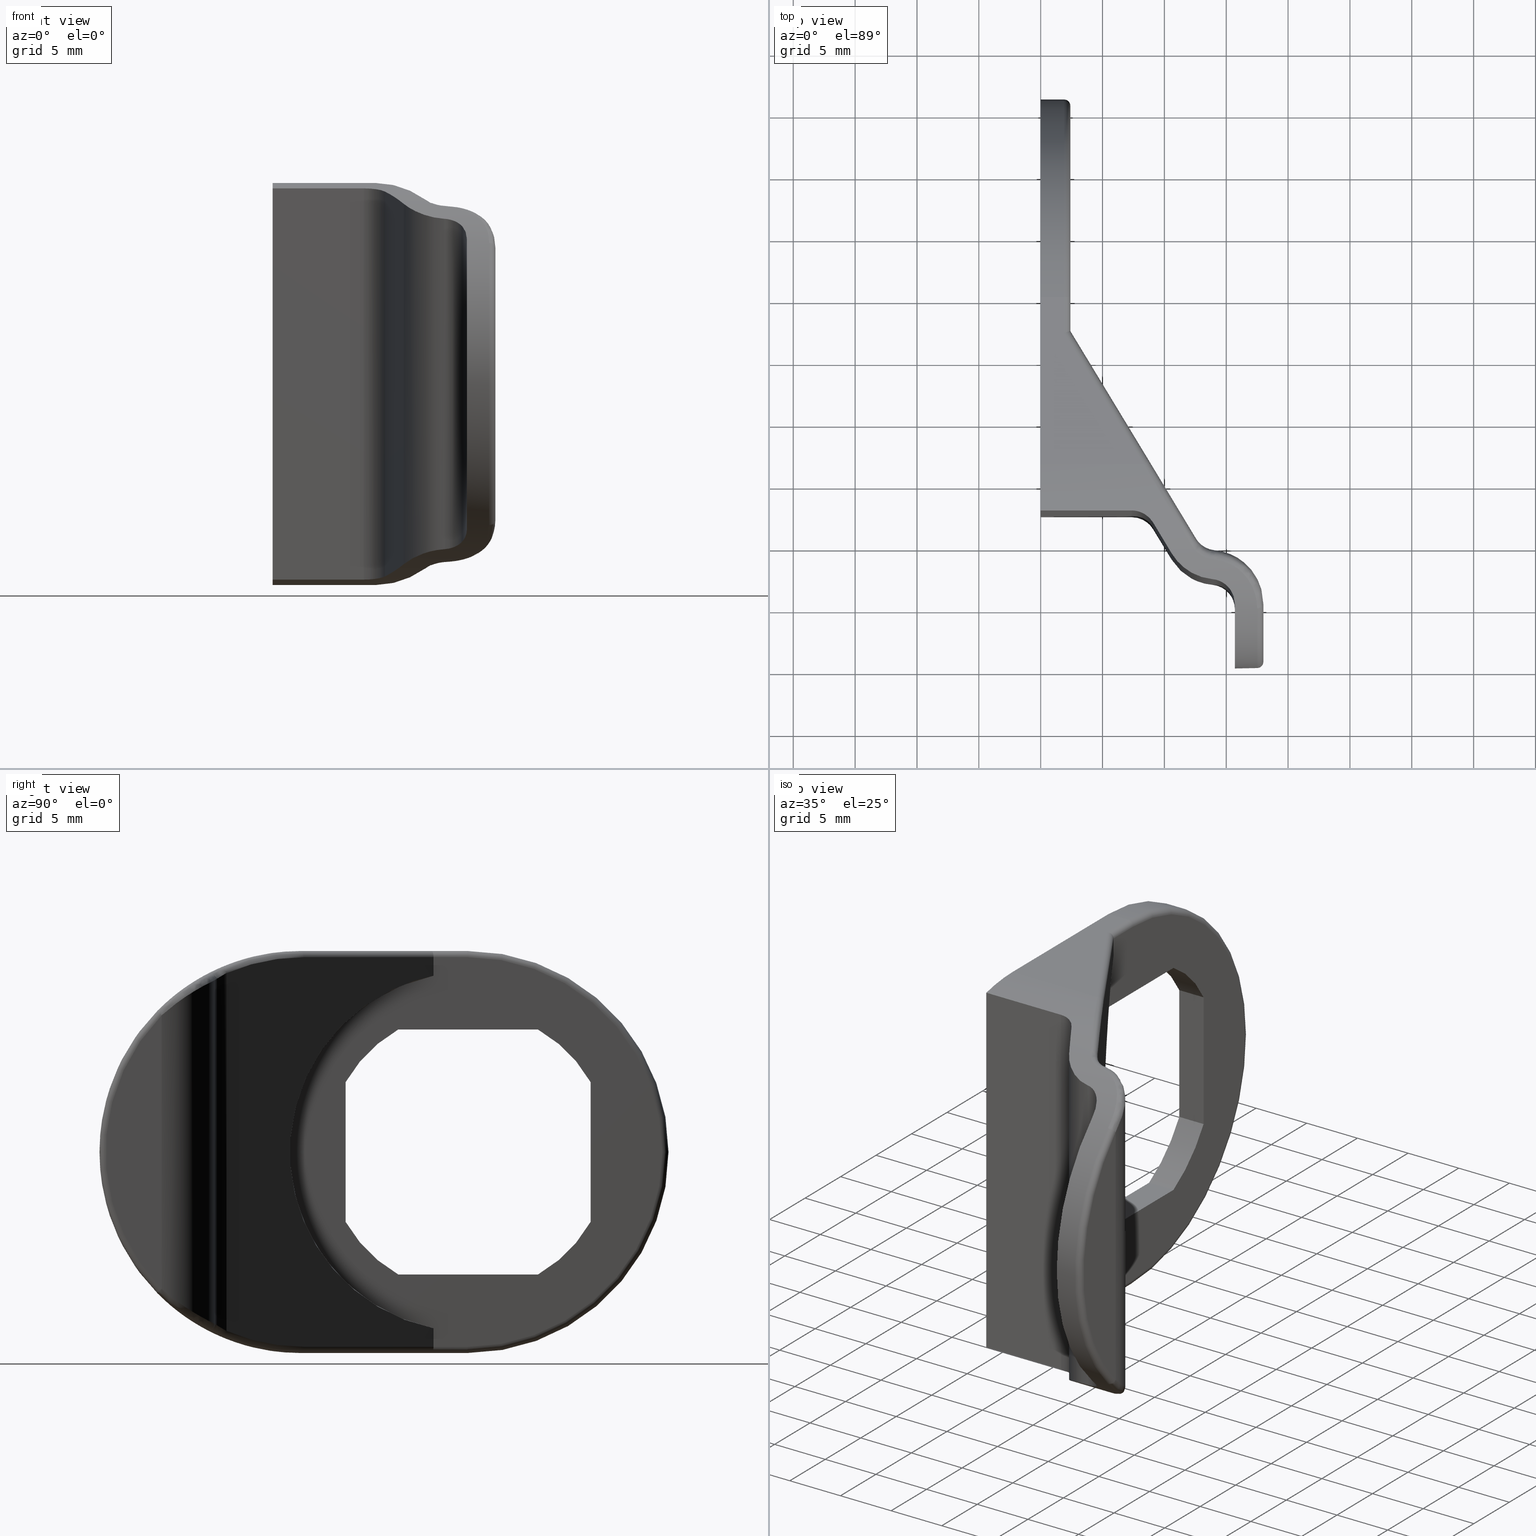
[diagram: canonical four-view strip — front | top / right | iso, engineering-drawing reading convention]
A machine part, canonical four-view strip (front | top / right | iso — engineering-drawing reading convention). The complete STEP part file that produces these views, byte-faithful:
ISO-10303-21;
HEADER;
/* Generated by software containing ST-Developer
 * from STEP Tools, Inc. (www.steptools.com) 
 */

FILE_DESCRIPTION(
/* description */ (''),
/* implementation_level */ '2;1');

FILE_NAME(
/* name */ '\\\\SYNOLOGYNAS\\web\\db2\\KC-CV\\\X2\B3C4BA74\X0\\\KC-CV.
stp',
/* time_stamp */ '2023-05-24T08:15:31+09:00',
/* author */ ('user'),
/* organization */ (''),
/* preprocessor_version */ 'ST-DEVELOPER v15.6',
/* originating_system */ 'Autodesk Inventor 2015',
/* authorisation */ '');

FILE_SCHEMA (('AUTOMOTIVE_DESIGN { 1 0 10303 214 3 1 1 }'));
ENDSEC;

DATA;
#10=MECHANICAL_DESIGN_GEOMETRIC_PRESENTATION_REPRESENTATION('',(#16),#1339);
#11=DIMENSIONAL_EXPONENTS(0.,0.,0.,0.,0.,0.,0.);
#12=(
CONVERSION_BASED_UNIT('degree',#13)
NAMED_UNIT(#11)
PLANE_ANGLE_UNIT()
);
#13=PLANE_ANGLE_MEASURE_WITH_UNIT(PLANE_ANGLE_MEASURE(0.01745329252),#1342);
#14=SHAPE_REPRESENTATION_RELATIONSHIP('SRR','None',#1345,#15);
#15=ADVANCED_BREP_SHAPE_REPRESENTATION($,(#17),#1338);
#16=STYLED_ITEM('',(#1355),#17);
#17=MANIFOLD_SOLID_BREP('Solid1',#643);
#18=FACE_BOUND('',#124,.T.);
#19=FACE_BOUND('',#128,.T.);
#20=PLANE('',#671);
#21=PLANE('',#674);
#22=PLANE('',#678);
#23=PLANE('',#682);
#24=PLANE('',#686);
#25=PLANE('',#690);
#26=PLANE('',#702);
#27=PLANE('',#704);
#28=PLANE('',#705);
#29=PLANE('',#706);
#30=PLANE('',#709);
#31=PLANE('',#710);
#32=PLANE('',#711);
#33=B_SPLINE_CURVE_WITH_KNOTS('',3,(#981,#982,#983,#984,#985),
 .UNSPECIFIED.,.F.,.F.,(4,1,4),(-0.241228562388868,-0.120614281194434,-6.77467687087299E-17),
 .UNSPECIFIED.);
#34=B_SPLINE_CURVE_WITH_KNOTS('',3,(#986,#987,#988,#989,#990),
 .UNSPECIFIED.,.F.,.F.,(4,1,4),(6.77467687087299E-17,0.120614281194434,
0.241228562388868),.UNSPECIFIED.);
#35=B_SPLINE_CURVE_WITH_KNOTS('',3,(#1030,#1031,#1032,#1033,#1034,#1035),
 .UNSPECIFIED.,.F.,.F.,(4,1,1,4),(-0.642658664445309,-0.367233522540176,
-0.183616761270088,0.),.UNSPECIFIED.);
#36=B_SPLINE_CURVE_WITH_KNOTS('',3,(#1036,#1037,#1038,#1039,#1040,#1041),
 .UNSPECIFIED.,.F.,.F.,(4,1,1,4),(0.,0.183616761270088,0.367233522540176,
0.642658664445309),.UNSPECIFIED.);
#37=B_SPLINE_CURVE_WITH_KNOTS('',3,(#1087,#1088,#1089,#1090,#1091,#1092),
 .UNSPECIFIED.,.F.,.F.,(4,1,1,4),(-0.642551760168195,-0.458965542977282,
-0.275379325786369,-1.22738357938727E-16),.UNSPECIFIED.);
#38=B_SPLINE_CURVE_WITH_KNOTS('',3,(#1093,#1094,#1095,#1096,#1097,#1098),
 .UNSPECIFIED.,.F.,.F.,(4,1,1,4),(1.22738357938727E-16,0.275379325786369,
0.458965542977282,0.642551760168195),.UNSPECIFIED.);
#39=B_SPLINE_CURVE_WITH_KNOTS('',3,(#1132,#1133,#1134,#1135,#1136),
 .UNSPECIFIED.,.F.,.F.,(4,1,4),(-0.241308165625097,-0.120654082812549,-3.02352462459294E-16),
 .UNSPECIFIED.);
#40=B_SPLINE_CURVE_WITH_KNOTS('',3,(#1137,#1138,#1139,#1140,#1141),
 .UNSPECIFIED.,.F.,.F.,(4,1,4),(3.02352462459294E-16,0.120654082812549,
0.241308165625097),.UNSPECIFIED.);
#41=B_SPLINE_CURVE_WITH_KNOTS('',3,(#1245,#1246,#1247,#1248,#1249,#1250,
#1251,#1252),.UNSPECIFIED.,.F.,.F.,(4,2,2,4),(1.05034701199664,1.09984363667316,
1.17486627914916,1.24988892162517),.UNSPECIFIED.);
#42=B_SPLINE_CURVE_WITH_KNOTS('',3,(#1256,#1257,#1258,#1259,#1260,#1261,
#1262,#1263),.UNSPECIFIED.,.F.,.F.,(4,2,2,4),(-2.64061548722311,-2.51549789754464,
-2.35170275705316,-2.23488656191819),.UNSPECIFIED.);
#43=B_SPLINE_CURVE_WITH_KNOTS('',3,(#1265,#1266,#1267,#1268,#1269,#1270,
#1271,#1272,#1273,#1274),.UNSPECIFIED.,.F.,.F.,(4,2,2,2,4),(1.11627115338577,
1.21678543906665,1.31729972474753,1.39111619261252,1.44696236397198),
 .UNSPECIFIED.);
#44=B_SPLINE_CURVE_WITH_KNOTS('',3,(#1278,#1279,#1280,#1281,#1282,#1283,
#1284,#1285,#1286,#1287),.UNSPECIFIED.,.F.,.F.,(4,2,2,2,4),(0.01797029650553,
0.0738164678649866,0.147632935729973,0.248147221410856,0.348661507091739),
 .UNSPECIFIED.);
#45=B_SPLINE_CURVE_WITH_KNOTS('',3,(#1289,#1290,#1291,#1292,#1293,#1294,
#1295,#1296),.UNSPECIFIED.,.F.,.F.,(4,2,2,4),(-0.444406476117937,-0.327590280982962,
-0.163795140491481,-0.0386775508130194),.UNSPECIFIED.);
#46=B_SPLINE_CURVE_WITH_KNOTS('',3,(#1300,#1301,#1302,#1303,#1304,#1305,
#1306,#1307),.UNSPECIFIED.,.F.,.F.,(4,2,2,4),(0.,0.0750226424760057,0.150045284952011,
0.199541909628529),.UNSPECIFIED.);
#47=B_SPLINE_SURFACE_WITH_KNOTS('',3,3,((#919,#920,#921,#922),(#923,#924,
#925,#926),(#927,#928,#929,#930),(#931,#932,#933,#934),(#935,#936,#937,
#938),(#939,#940,#941,#942)),.UNSPECIFIED.,.F.,.F.,.F.,(4,1,1,4),(4,4),
(-0.00014500081833339,0.285714285714286,0.571428571428571,1.00137083352437),
(-1.57216716031927,-1.16165082388922),.UNSPECIFIED.);
#48=B_SPLINE_SURFACE_WITH_KNOTS('',3,3,((#948,#949,#950,#951,#952),(#953,
#954,#955,#956,#957),(#958,#959,#960,#961,#962),(#963,#964,#965,#966,#967),
(#968,#969,#970,#971,#972),(#973,#974,#975,#976,#977)),.UNSPECIFIED.,.F.,
 .F.,.F.,(4,1,1,4),(4,1,4),(0.,0.285714285714286,0.571428571428571,1.),
(6.77467687087299E-17,0.120614281194434,0.241228562388868),
 .UNSPECIFIED.);
#49=B_SPLINE_SURFACE_WITH_KNOTS('',3,3,((#991,#992,#993,#994,#995,#996),
(#997,#998,#999,#1000,#1001,#1002),(#1003,#1004,#1005,#1006,#1007,#1008),
(#1009,#1010,#1011,#1012,#1013,#1014),(#1015,#1016,#1017,#1018,#1019,#1020),
(#1021,#1022,#1023,#1024,#1025,#1026)),.UNSPECIFIED.,.F.,.F.,.F.,(4,1,1,
4),(4,1,1,4),(0.,0.285714285714286,0.571428571428571,1.),(0.,0.183616761270088,
0.367233522540176,0.642658664445309),.UNSPECIFIED.);
#50=B_SPLINE_SURFACE_WITH_KNOTS('',3,3,((#1048,#1049,#1050,#1051,#1052,
#1053),(#1054,#1055,#1056,#1057,#1058,#1059),(#1060,#1061,#1062,#1063,#1064,
#1065),(#1066,#1067,#1068,#1069,#1070,#1071),(#1072,#1073,#1074,#1075,#1076,
#1077),(#1078,#1079,#1080,#1081,#1082,#1083)),.UNSPECIFIED.,.F.,.F.,.F.,
(4,1,1,4),(4,1,1,4),(0.,0.285714285714286,0.571428571428571,1.),(1.22738357938727E-16,
0.275379325786369,0.458965542977282,0.642551760168195),.UNSPECIFIED.);
#51=B_SPLINE_SURFACE_WITH_KNOTS('',3,3,((#1099,#1100,#1101,#1102,#1103),
(#1104,#1105,#1106,#1107,#1108),(#1109,#1110,#1111,#1112,#1113),(#1114,
#1115,#1116,#1117,#1118),(#1119,#1120,#1121,#1122,#1123),(#1124,#1125,#1126,
#1127,#1128)),.UNSPECIFIED.,.F.,.F.,.F.,(4,1,1,4),(4,1,4),(0.,0.285714285714286,
0.571428571428571,1.),(3.02352462459294E-16,0.120654082812549,0.241308165625097),
 .UNSPECIFIED.);
#52=B_SPLINE_SURFACE_WITH_KNOTS('',3,3,((#1142,#1143,#1144,#1145),(#1146,
#1147,#1148,#1149),(#1150,#1151,#1152,#1153),(#1154,#1155,#1156,#1157),
(#1158,#1159,#1160,#1161),(#1162,#1163,#1164,#1165)),.UNSPECIFIED.,.F.,
 .F.,.F.,(4,1,1,4),(4,4),(-0.000145000818335575,0.285714285714286,0.571428571428571,
1.00137083352435),(1.16165082388925,1.57216716031925),.UNSPECIFIED.);
#53=TOROIDAL_SURFACE('',#648,15.75,0.5);
#54=TOROIDAL_SURFACE('',#661,15.75,0.5);
#55=FACE_OUTER_BOUND('',#92,.T.);
#56=FACE_OUTER_BOUND('',#93,.T.);
#57=FACE_OUTER_BOUND('',#94,.T.);
#58=FACE_OUTER_BOUND('',#95,.T.);
#59=FACE_OUTER_BOUND('',#96,.T.);
#60=FACE_OUTER_BOUND('',#97,.T.);
#61=FACE_OUTER_BOUND('',#98,.T.);
#62=FACE_OUTER_BOUND('',#99,.T.);
#63=FACE_OUTER_BOUND('',#100,.T.);
#64=FACE_OUTER_BOUND('',#101,.T.);
#65=FACE_OUTER_BOUND('',#102,.T.);
#66=FACE_OUTER_BOUND('',#103,.T.);
#67=FACE_OUTER_BOUND('',#104,.T.);
#68=FACE_OUTER_BOUND('',#105,.T.);
#69=FACE_OUTER_BOUND('',#106,.T.);
#70=FACE_OUTER_BOUND('',#107,.T.);
#71=FACE_OUTER_BOUND('',#108,.T.);
#72=FACE_OUTER_BOUND('',#109,.T.);
#73=FACE_OUTER_BOUND('',#110,.T.);
#74=FACE_OUTER_BOUND('',#111,.T.);
#75=FACE_OUTER_BOUND('',#112,.T.);
#76=FACE_OUTER_BOUND('',#113,.T.);
#77=FACE_OUTER_BOUND('',#114,.T.);
#78=FACE_OUTER_BOUND('',#115,.T.);
#79=FACE_OUTER_BOUND('',#116,.T.);
#80=FACE_OUTER_BOUND('',#117,.T.);
#81=FACE_OUTER_BOUND('',#118,.T.);
#82=FACE_OUTER_BOUND('',#119,.T.);
#83=FACE_OUTER_BOUND('',#120,.T.);
#84=FACE_OUTER_BOUND('',#121,.T.);
#85=FACE_OUTER_BOUND('',#122,.T.);
#86=FACE_OUTER_BOUND('',#123,.T.);
#87=FACE_OUTER_BOUND('',#125,.T.);
#88=FACE_OUTER_BOUND('',#126,.T.);
#89=FACE_OUTER_BOUND('',#127,.T.);
#90=FACE_OUTER_BOUND('',#129,.T.);
#91=FACE_OUTER_BOUND('',#130,.T.);
#92=EDGE_LOOP('',(#404,#405,#406,#407));
#93=EDGE_LOOP('',(#408,#409,#410,#411));
#94=EDGE_LOOP('',(#412,#413,#414,#415));
#95=EDGE_LOOP('',(#416,#417,#418,#419));
#96=EDGE_LOOP('',(#420,#421,#422,#423));
#97=EDGE_LOOP('',(#424,#425,#426,#427));
#98=EDGE_LOOP('',(#428,#429,#430,#431));
#99=EDGE_LOOP('',(#432,#433,#434,#435));
#100=EDGE_LOOP('',(#436,#437,#438,#439));
#101=EDGE_LOOP('',(#440,#441,#442,#443));
#102=EDGE_LOOP('',(#444,#445,#446,#447));
#103=EDGE_LOOP('',(#448,#449,#450,#451));
#104=EDGE_LOOP('',(#452,#453,#454,#455,#456));
#105=EDGE_LOOP('',(#457,#458,#459,#460));
#106=EDGE_LOOP('',(#461,#462));
#107=EDGE_LOOP('',(#463,#464,#465,#466));
#108=EDGE_LOOP('',(#467,#468,#469,#470));
#109=EDGE_LOOP('',(#471,#472,#473,#474));
#110=EDGE_LOOP('',(#475,#476,#477,#478));
#111=EDGE_LOOP('',(#479,#480,#481,#482));
#112=EDGE_LOOP('',(#483,#484,#485,#486));
#113=EDGE_LOOP('',(#487,#488,#489,#490));
#114=EDGE_LOOP('',(#491,#492,#493,#494));
#115=EDGE_LOOP('',(#495,#496));
#116=EDGE_LOOP('',(#497,#498,#499,#500,#501,#502,#503,#504,#505,#506,#507,
#508,#509,#510,#511,#512,#513,#514,#515,#516,#517,#518));
#117=EDGE_LOOP('',(#519,#520,#521,#522));
#118=EDGE_LOOP('',(#523,#524,#525,#526));
#119=EDGE_LOOP('',(#527,#528,#529,#530));
#120=EDGE_LOOP('',(#531,#532,#533,#534));
#121=EDGE_LOOP('',(#535,#536,#537,#538));
#122=EDGE_LOOP('',(#539,#540,#541,#542,#543));
#123=EDGE_LOOP('',(#544,#545,#546,#547,#548,#549));
#124=EDGE_LOOP('',(#550,#551,#552,#553,#554,#555,#556,#557));
#125=EDGE_LOOP('',(#558,#559,#560,#561));
#126=EDGE_LOOP('',(#562,#563,#564,#565));
#127=EDGE_LOOP('',(#566,#567,#568,#569,#570,#571));
#128=EDGE_LOOP('',(#572,#573,#574,#575,#576,#577,#578,#579));
#129=EDGE_LOOP('',(#580,#581,#582,#583,#584,#585,#586,#587));
#130=EDGE_LOOP('',(#588,#589));
#131=ELLIPSE('',#647,0.519152656694522,0.5);
#132=ELLIPSE('',#653,0.519152656694521,0.5);
#133=ELLIPSE('',#657,18.417746725672,15.75);
#134=ELLIPSE('',#658,18.8471057314114,16.25);
#135=ELLIPSE('',#668,18.417746725672,15.75);
#136=ELLIPSE('',#669,18.8471057314114,16.25);
#137=ELLIPSE('',#692,17.0165780121883,14.5517857142857);
#138=ELLIPSE('',#696,19.0024370979155,16.25);
#139=ELLIPSE('',#698,19.0024370979155,16.25);
#140=LINE('',#897,#183);
#141=LINE('',#900,#184);
#142=LINE('',#909,#185);
#143=LINE('',#911,#186);
#144=LINE('',#917,#187);
#145=LINE('',#918,#188);
#146=LINE('',#1172,#189);
#147=LINE('',#1173,#190);
#148=LINE('',#1176,#191);
#149=LINE('',#1178,#192);
#150=LINE('',#1179,#193);
#151=LINE('',#1182,#194);
#152=LINE('',#1185,#195);
#153=LINE('',#1191,#196);
#154=LINE('',#1194,#197);
#155=LINE('',#1197,#198);
#156=LINE('',#1199,#199);
#157=LINE('',#1200,#200);
#158=LINE('',#1206,#201);
#159=LINE('',#1209,#202);
#160=LINE('',#1211,#203);
#161=LINE('',#1212,#204);
#162=LINE('',#1218,#205);
#163=LINE('',#1221,#206);
#164=LINE('',#1223,#207);
#165=LINE('',#1224,#208);
#166=LINE('',#1229,#209);
#167=LINE('',#1232,#210);
#168=LINE('',#1233,#211);
#169=LINE('',#1243,#212);
#170=LINE('',#1309,#213);
#171=LINE('',#1312,#214);
#172=LINE('',#1314,#215);
#173=LINE('',#1315,#216);
#174=LINE('',#1317,#217);
#175=LINE('',#1319,#218);
#176=LINE('',#1321,#219);
#177=LINE('',#1323,#220);
#178=LINE('',#1325,#221);
#179=LINE('',#1328,#222);
#180=LINE('',#1330,#223);
#181=LINE('',#1332,#224);
#182=LINE('',#1333,#225);
#183=VECTOR('',#718,2.75);
#184=VECTOR('',#721,2.88971213602611);
#185=VECTOR('',#732,2.75);
#186=VECTOR('',#733,2.88971213602611);
#187=VECTOR('',#740,12.2677541855702);
#188=VECTOR('',#741,12.4074663215963);
#189=VECTOR('',#772,12.2677541855702);
#190=VECTOR('',#773,12.4074663215963);
#191=VECTOR('',#776,1.9);
#192=VECTOR('',#777,13.5);
#193=VECTOR('',#778,8.33171920758016);
#194=VECTOR('',#781,1.9);
#195=VECTOR('',#786,22.0954300190392);
#196=VECTOR('',#791,2.4);
#197=VECTOR('',#794,2.4);
#198=VECTOR('',#797,11.3048662088501);
#199=VECTOR('',#798,11.3048662088501);
#200=VECTOR('',#799,2.4);
#201=VECTOR('',#806,2.4);
#202=VECTOR('',#809,11.3048662088501);
#203=VECTOR('',#810,11.3048662088501);
#204=VECTOR('',#811,2.4);
#205=VECTOR('',#818,2.4);
#206=VECTOR('',#821,11.3048662088501);
#207=VECTOR('',#822,2.4);
#208=VECTOR('',#823,11.3048662088501);
#209=VECTOR('',#828,2.4);
#210=VECTOR('',#833,11.3048662088501);
#211=VECTOR('',#834,11.3048662088501);
#212=VECTOR('',#845,7.37359378169066);
#213=VECTOR('',#852,7.37359378169066);
#214=VECTOR('',#855,8.33171920758016);
#215=VECTOR('',#858,26.7093528048162);
#216=VECTOR('',#859,23.4520787991172);
#217=VECTOR('',#862,29.1307853843926);
#218=VECTOR('',#865,31.1029112910566);
#219=VECTOR('',#868,31.6227766016838);
#220=VECTOR('',#871,31.6227766016838);
#221=VECTOR('',#874,13.5);
#222=VECTOR('',#879,27.7636541939978);
#223=VECTOR('',#882,28.9171760469651);
#224=VECTOR('',#885,1.5);
#225=VECTOR('',#886,1.5);
#226=CIRCLE('',#646,0.5);
#227=CIRCLE('',#649,0.5);
#228=CIRCLE('',#650,15.75);
#229=CIRCLE('',#651,16.25);
#230=CIRCLE('',#655,0.499999999999998);
#231=CIRCLE('',#656,0.499999999999998);
#232=CIRCLE('',#659,0.499999999999998);
#233=CIRCLE('',#660,0.499999999999997);
#234=CIRCLE('',#662,0.5);
#235=CIRCLE('',#663,15.75);
#236=CIRCLE('',#664,16.25);
#237=CIRCLE('',#665,0.500000000000002);
#238=CIRCLE('',#666,0.500000000000003);
#239=CIRCLE('',#667,0.5);
#240=CIRCLE('',#673,16.25);
#241=CIRCLE('',#676,11.4);
#242=CIRCLE('',#677,11.4);
#243=CIRCLE('',#680,11.4);
#244=CIRCLE('',#681,11.4);
#245=CIRCLE('',#684,11.4);
#246=CIRCLE('',#685,11.4);
#247=CIRCLE('',#688,11.4);
#248=CIRCLE('',#689,11.4);
#249=CIRCLE('',#693,14.5517857142857);
#250=CIRCLE('',#695,16.25);
#251=CIRCLE('',#697,16.25);
#252=CIRCLE('',#699,16.25);
#253=VERTEX_POINT('',#893);
#254=VERTEX_POINT('',#894);
#255=VERTEX_POINT('',#896);
#256=VERTEX_POINT('',#898);
#257=VERTEX_POINT('',#902);
#258=VERTEX_POINT('',#903);
#259=VERTEX_POINT('',#908);
#260=VERTEX_POINT('',#910);
#261=VERTEX_POINT('',#914);
#262=VERTEX_POINT('',#915);
#263=VERTEX_POINT('',#943);
#264=VERTEX_POINT('',#944);
#265=VERTEX_POINT('',#978);
#266=VERTEX_POINT('',#979);
#267=VERTEX_POINT('',#1027);
#268=VERTEX_POINT('',#1028);
#269=VERTEX_POINT('',#1043);
#270=VERTEX_POINT('',#1044);
#271=VERTEX_POINT('',#1084);
#272=VERTEX_POINT('',#1085);
#273=VERTEX_POINT('',#1129);
#274=VERTEX_POINT('',#1130);
#275=VERTEX_POINT('',#1166);
#276=VERTEX_POINT('',#1167);
#277=VERTEX_POINT('',#1175);
#278=VERTEX_POINT('',#1177);
#279=VERTEX_POINT('',#1181);
#280=VERTEX_POINT('',#1187);
#281=VERTEX_POINT('',#1188);
#282=VERTEX_POINT('',#1190);
#283=VERTEX_POINT('',#1192);
#284=VERTEX_POINT('',#1196);
#285=VERTEX_POINT('',#1198);
#286=VERTEX_POINT('',#1202);
#287=VERTEX_POINT('',#1204);
#288=VERTEX_POINT('',#1208);
#289=VERTEX_POINT('',#1210);
#290=VERTEX_POINT('',#1214);
#291=VERTEX_POINT('',#1216);
#292=VERTEX_POINT('',#1220);
#293=VERTEX_POINT('',#1222);
#294=VERTEX_POINT('',#1226);
#295=VERTEX_POINT('',#1228);
#296=VERTEX_POINT('',#1235);
#297=VERTEX_POINT('',#1236);
#298=VERTEX_POINT('',#1240);
#299=VERTEX_POINT('',#1242);
#300=VERTEX_POINT('',#1244);
#301=VERTEX_POINT('',#1253);
#302=VERTEX_POINT('',#1255);
#303=VERTEX_POINT('',#1264);
#304=VERTEX_POINT('',#1275);
#305=VERTEX_POINT('',#1277);
#306=VERTEX_POINT('',#1288);
#307=VERTEX_POINT('',#1297);
#308=VERTEX_POINT('',#1299);
#309=VERTEX_POINT('',#1308);
#310=VERTEX_POINT('',#1310);
#311=EDGE_CURVE('',#253,#254,#226,.T.);
#312=EDGE_CURVE('',#254,#255,#140,.T.);
#313=EDGE_CURVE('',#256,#255,#131,.T.);
#314=EDGE_CURVE('',#256,#253,#141,.T.);
#315=EDGE_CURVE('',#257,#258,#227,.T.);
#316=EDGE_CURVE('',#258,#254,#228,.T.);
#317=EDGE_CURVE('',#253,#257,#229,.T.);
#318=EDGE_CURVE('',#259,#258,#142,.T.);
#319=EDGE_CURVE('',#257,#260,#143,.T.);
#320=EDGE_CURVE('',#260,#259,#132,.T.);
#321=EDGE_CURVE('',#261,#262,#230,.T.);
#322=EDGE_CURVE('',#262,#259,#144,.T.);
#323=EDGE_CURVE('',#260,#261,#145,.T.);
#324=EDGE_CURVE('',#263,#264,#231,.T.);
#325=EDGE_CURVE('',#264,#262,#133,.T.);
#326=EDGE_CURVE('',#261,#263,#134,.T.);
#327=EDGE_CURVE('',#265,#266,#232,.T.);
#328=EDGE_CURVE('',#266,#264,#33,.T.);
#329=EDGE_CURVE('',#263,#265,#34,.T.);
#330=EDGE_CURVE('',#267,#268,#233,.T.);
#331=EDGE_CURVE('',#268,#266,#35,.T.);
#332=EDGE_CURVE('',#265,#267,#36,.T.);
#333=EDGE_CURVE('',#269,#270,#234,.T.);
#334=EDGE_CURVE('',#270,#268,#235,.T.);
#335=EDGE_CURVE('',#267,#269,#236,.T.);
#336=EDGE_CURVE('',#271,#272,#237,.T.);
#337=EDGE_CURVE('',#272,#270,#37,.T.);
#338=EDGE_CURVE('',#269,#271,#38,.T.);
#339=EDGE_CURVE('',#273,#274,#238,.T.);
#340=EDGE_CURVE('',#274,#272,#39,.T.);
#341=EDGE_CURVE('',#271,#273,#40,.T.);
#342=EDGE_CURVE('',#275,#276,#239,.T.);
#343=EDGE_CURVE('',#276,#274,#135,.T.);
#344=EDGE_CURVE('',#273,#275,#136,.T.);
#345=EDGE_CURVE('',#255,#276,#146,.T.);
#346=EDGE_CURVE('',#275,#256,#147,.T.);
#347=EDGE_CURVE('',#257,#277,#148,.T.);
#348=EDGE_CURVE('',#278,#277,#149,.T.);
#349=EDGE_CURVE('',#261,#278,#150,.T.);
#350=EDGE_CURVE('',#253,#279,#151,.T.);
#351=EDGE_CURVE('',#277,#279,#240,.T.);
#352=EDGE_CURVE('',#268,#270,#152,.T.);
#353=EDGE_CURVE('',#280,#281,#241,.T.);
#354=EDGE_CURVE('',#280,#282,#153,.T.);
#355=EDGE_CURVE('',#283,#282,#242,.T.);
#356=EDGE_CURVE('',#281,#283,#154,.T.);
#357=EDGE_CURVE('',#281,#284,#155,.T.);
#358=EDGE_CURVE('',#285,#283,#156,.T.);
#359=EDGE_CURVE('',#284,#285,#157,.T.);
#360=EDGE_CURVE('',#284,#286,#243,.T.);
#361=EDGE_CURVE('',#287,#285,#244,.T.);
#362=EDGE_CURVE('',#286,#287,#158,.T.);
#363=EDGE_CURVE('',#286,#288,#159,.T.);
#364=EDGE_CURVE('',#289,#287,#160,.T.);
#365=EDGE_CURVE('',#288,#289,#161,.T.);
#366=EDGE_CURVE('',#288,#290,#245,.T.);
#367=EDGE_CURVE('',#291,#289,#246,.T.);
#368=EDGE_CURVE('',#291,#290,#162,.T.);
#369=EDGE_CURVE('',#292,#280,#163,.T.);
#370=EDGE_CURVE('',#292,#293,#164,.T.);
#371=EDGE_CURVE('',#282,#293,#165,.T.);
#372=EDGE_CURVE('',#294,#292,#247,.T.);
#373=EDGE_CURVE('',#294,#295,#166,.T.);
#374=EDGE_CURVE('',#293,#295,#248,.T.);
#375=EDGE_CURVE('',#290,#294,#167,.T.);
#376=EDGE_CURVE('',#295,#291,#168,.T.);
#377=EDGE_CURVE('',#296,#297,#137,.T.);
#378=EDGE_CURVE('',#297,#296,#249,.T.);
#379=EDGE_CURVE('',#298,#278,#250,.T.);
#380=EDGE_CURVE('',#299,#298,#169,.T.);
#381=EDGE_CURVE('',#300,#299,#41,.T.);
#382=EDGE_CURVE('',#301,#300,#138,.T.);
#383=EDGE_CURVE('',#302,#301,#42,.T.);
#384=EDGE_CURVE('',#303,#302,#43,.T.);
#385=EDGE_CURVE('',#304,#303,#251,.T.);
#386=EDGE_CURVE('',#305,#304,#44,.T.);
#387=EDGE_CURVE('',#306,#305,#45,.T.);
#388=EDGE_CURVE('',#307,#306,#139,.T.);
#389=EDGE_CURVE('',#308,#307,#46,.T.);
#390=EDGE_CURVE('',#309,#308,#170,.T.);
#391=EDGE_CURVE('',#310,#309,#252,.T.);
#392=EDGE_CURVE('',#275,#310,#171,.T.);
#393=EDGE_CURVE('',#305,#302,#172,.T.);
#394=EDGE_CURVE('',#304,#303,#173,.T.);
#395=EDGE_CURVE('',#301,#306,#174,.T.);
#396=EDGE_CURVE('',#307,#300,#175,.T.);
#397=EDGE_CURVE('',#299,#308,#176,.T.);
#398=EDGE_CURVE('',#298,#309,#177,.T.);
#399=EDGE_CURVE('',#279,#310,#178,.T.);
#400=EDGE_CURVE('',#272,#266,#179,.T.);
#401=EDGE_CURVE('',#274,#264,#180,.T.);
#402=EDGE_CURVE('',#259,#297,#181,.T.);
#403=EDGE_CURVE('',#296,#255,#182,.T.);
#404=ORIENTED_EDGE('',*,*,#311,.T.);
#405=ORIENTED_EDGE('',*,*,#312,.T.);
#406=ORIENTED_EDGE('',*,*,#313,.F.);
#407=ORIENTED_EDGE('',*,*,#314,.T.);
#408=ORIENTED_EDGE('',*,*,#315,.T.);
#409=ORIENTED_EDGE('',*,*,#316,.T.);
#410=ORIENTED_EDGE('',*,*,#311,.F.);
#411=ORIENTED_EDGE('',*,*,#317,.T.);
#412=ORIENTED_EDGE('',*,*,#318,.T.);
#413=ORIENTED_EDGE('',*,*,#315,.F.);
#414=ORIENTED_EDGE('',*,*,#319,.T.);
#415=ORIENTED_EDGE('',*,*,#320,.T.);
#416=ORIENTED_EDGE('',*,*,#321,.T.);
#417=ORIENTED_EDGE('',*,*,#322,.T.);
#418=ORIENTED_EDGE('',*,*,#320,.F.);
#419=ORIENTED_EDGE('',*,*,#323,.T.);
#420=ORIENTED_EDGE('',*,*,#324,.T.);
#421=ORIENTED_EDGE('',*,*,#325,.T.);
#422=ORIENTED_EDGE('',*,*,#321,.F.);
#423=ORIENTED_EDGE('',*,*,#326,.T.);
#424=ORIENTED_EDGE('',*,*,#327,.T.);
#425=ORIENTED_EDGE('',*,*,#328,.T.);
#426=ORIENTED_EDGE('',*,*,#324,.F.);
#427=ORIENTED_EDGE('',*,*,#329,.T.);
#428=ORIENTED_EDGE('',*,*,#330,.T.);
#429=ORIENTED_EDGE('',*,*,#331,.T.);
#430=ORIENTED_EDGE('',*,*,#327,.F.);
#431=ORIENTED_EDGE('',*,*,#332,.T.);
#432=ORIENTED_EDGE('',*,*,#333,.T.);
#433=ORIENTED_EDGE('',*,*,#334,.T.);
#434=ORIENTED_EDGE('',*,*,#330,.F.);
#435=ORIENTED_EDGE('',*,*,#335,.T.);
#436=ORIENTED_EDGE('',*,*,#336,.T.);
#437=ORIENTED_EDGE('',*,*,#337,.T.);
#438=ORIENTED_EDGE('',*,*,#333,.F.);
#439=ORIENTED_EDGE('',*,*,#338,.T.);
#440=ORIENTED_EDGE('',*,*,#339,.T.);
#441=ORIENTED_EDGE('',*,*,#340,.T.);
#442=ORIENTED_EDGE('',*,*,#336,.F.);
#443=ORIENTED_EDGE('',*,*,#341,.T.);
#444=ORIENTED_EDGE('',*,*,#342,.T.);
#445=ORIENTED_EDGE('',*,*,#343,.T.);
#446=ORIENTED_EDGE('',*,*,#339,.F.);
#447=ORIENTED_EDGE('',*,*,#344,.T.);
#448=ORIENTED_EDGE('',*,*,#345,.T.);
#449=ORIENTED_EDGE('',*,*,#342,.F.);
#450=ORIENTED_EDGE('',*,*,#346,.T.);
#451=ORIENTED_EDGE('',*,*,#313,.T.);
#452=ORIENTED_EDGE('',*,*,#323,.F.);
#453=ORIENTED_EDGE('',*,*,#319,.F.);
#454=ORIENTED_EDGE('',*,*,#347,.T.);
#455=ORIENTED_EDGE('',*,*,#348,.F.);
#456=ORIENTED_EDGE('',*,*,#349,.F.);
#457=ORIENTED_EDGE('',*,*,#317,.F.);
#458=ORIENTED_EDGE('',*,*,#350,.T.);
#459=ORIENTED_EDGE('',*,*,#351,.F.);
#460=ORIENTED_EDGE('',*,*,#347,.F.);
#461=ORIENTED_EDGE('',*,*,#334,.F.);
#462=ORIENTED_EDGE('',*,*,#352,.F.);
#463=ORIENTED_EDGE('',*,*,#353,.F.);
#464=ORIENTED_EDGE('',*,*,#354,.T.);
#465=ORIENTED_EDGE('',*,*,#355,.F.);
#466=ORIENTED_EDGE('',*,*,#356,.F.);
#467=ORIENTED_EDGE('',*,*,#357,.F.);
#468=ORIENTED_EDGE('',*,*,#356,.T.);
#469=ORIENTED_EDGE('',*,*,#358,.F.);
#470=ORIENTED_EDGE('',*,*,#359,.F.);
#471=ORIENTED_EDGE('',*,*,#360,.F.);
#472=ORIENTED_EDGE('',*,*,#359,.T.);
#473=ORIENTED_EDGE('',*,*,#361,.F.);
#474=ORIENTED_EDGE('',*,*,#362,.F.);
#475=ORIENTED_EDGE('',*,*,#363,.F.);
#476=ORIENTED_EDGE('',*,*,#362,.T.);
#477=ORIENTED_EDGE('',*,*,#364,.F.);
#478=ORIENTED_EDGE('',*,*,#365,.F.);
#479=ORIENTED_EDGE('',*,*,#366,.F.);
#480=ORIENTED_EDGE('',*,*,#365,.T.);
#481=ORIENTED_EDGE('',*,*,#367,.F.);
#482=ORIENTED_EDGE('',*,*,#368,.T.);
#483=ORIENTED_EDGE('',*,*,#369,.F.);
#484=ORIENTED_EDGE('',*,*,#370,.T.);
#485=ORIENTED_EDGE('',*,*,#371,.F.);
#486=ORIENTED_EDGE('',*,*,#354,.F.);
#487=ORIENTED_EDGE('',*,*,#372,.F.);
#488=ORIENTED_EDGE('',*,*,#373,.T.);
#489=ORIENTED_EDGE('',*,*,#374,.F.);
#490=ORIENTED_EDGE('',*,*,#370,.F.);
#491=ORIENTED_EDGE('',*,*,#375,.F.);
#492=ORIENTED_EDGE('',*,*,#368,.F.);
#493=ORIENTED_EDGE('',*,*,#376,.F.);
#494=ORIENTED_EDGE('',*,*,#373,.F.);
#495=ORIENTED_EDGE('',*,*,#377,.F.);
#496=ORIENTED_EDGE('',*,*,#378,.F.);
#497=ORIENTED_EDGE('',*,*,#326,.F.);
#498=ORIENTED_EDGE('',*,*,#349,.T.);
#499=ORIENTED_EDGE('',*,*,#379,.F.);
#500=ORIENTED_EDGE('',*,*,#380,.F.);
#501=ORIENTED_EDGE('',*,*,#381,.F.);
#502=ORIENTED_EDGE('',*,*,#382,.F.);
#503=ORIENTED_EDGE('',*,*,#383,.F.);
#504=ORIENTED_EDGE('',*,*,#384,.F.);
#505=ORIENTED_EDGE('',*,*,#385,.F.);
#506=ORIENTED_EDGE('',*,*,#386,.F.);
#507=ORIENTED_EDGE('',*,*,#387,.F.);
#508=ORIENTED_EDGE('',*,*,#388,.F.);
#509=ORIENTED_EDGE('',*,*,#389,.F.);
#510=ORIENTED_EDGE('',*,*,#390,.F.);
#511=ORIENTED_EDGE('',*,*,#391,.F.);
#512=ORIENTED_EDGE('',*,*,#392,.F.);
#513=ORIENTED_EDGE('',*,*,#344,.F.);
#514=ORIENTED_EDGE('',*,*,#341,.F.);
#515=ORIENTED_EDGE('',*,*,#338,.F.);
#516=ORIENTED_EDGE('',*,*,#335,.F.);
#517=ORIENTED_EDGE('',*,*,#332,.F.);
#518=ORIENTED_EDGE('',*,*,#329,.F.);
#519=ORIENTED_EDGE('',*,*,#384,.T.);
#520=ORIENTED_EDGE('',*,*,#393,.F.);
#521=ORIENTED_EDGE('',*,*,#386,.T.);
#522=ORIENTED_EDGE('',*,*,#394,.T.);
#523=ORIENTED_EDGE('',*,*,#383,.T.);
#524=ORIENTED_EDGE('',*,*,#395,.T.);
#525=ORIENTED_EDGE('',*,*,#387,.T.);
#526=ORIENTED_EDGE('',*,*,#393,.T.);
#527=ORIENTED_EDGE('',*,*,#382,.T.);
#528=ORIENTED_EDGE('',*,*,#396,.F.);
#529=ORIENTED_EDGE('',*,*,#388,.T.);
#530=ORIENTED_EDGE('',*,*,#395,.F.);
#531=ORIENTED_EDGE('',*,*,#381,.T.);
#532=ORIENTED_EDGE('',*,*,#397,.T.);
#533=ORIENTED_EDGE('',*,*,#389,.T.);
#534=ORIENTED_EDGE('',*,*,#396,.T.);
#535=ORIENTED_EDGE('',*,*,#380,.T.);
#536=ORIENTED_EDGE('',*,*,#398,.T.);
#537=ORIENTED_EDGE('',*,*,#390,.T.);
#538=ORIENTED_EDGE('',*,*,#397,.F.);
#539=ORIENTED_EDGE('',*,*,#346,.F.);
#540=ORIENTED_EDGE('',*,*,#392,.T.);
#541=ORIENTED_EDGE('',*,*,#399,.F.);
#542=ORIENTED_EDGE('',*,*,#350,.F.);
#543=ORIENTED_EDGE('',*,*,#314,.F.);
#544=ORIENTED_EDGE('',*,*,#379,.T.);
#545=ORIENTED_EDGE('',*,*,#348,.T.);
#546=ORIENTED_EDGE('',*,*,#351,.T.);
#547=ORIENTED_EDGE('',*,*,#399,.T.);
#548=ORIENTED_EDGE('',*,*,#391,.T.);
#549=ORIENTED_EDGE('',*,*,#398,.F.);
#550=ORIENTED_EDGE('',*,*,#366,.T.);
#551=ORIENTED_EDGE('',*,*,#375,.T.);
#552=ORIENTED_EDGE('',*,*,#372,.T.);
#553=ORIENTED_EDGE('',*,*,#369,.T.);
#554=ORIENTED_EDGE('',*,*,#353,.T.);
#555=ORIENTED_EDGE('',*,*,#357,.T.);
#556=ORIENTED_EDGE('',*,*,#360,.T.);
#557=ORIENTED_EDGE('',*,*,#363,.T.);
#558=ORIENTED_EDGE('',*,*,#331,.F.);
#559=ORIENTED_EDGE('',*,*,#352,.T.);
#560=ORIENTED_EDGE('',*,*,#337,.F.);
#561=ORIENTED_EDGE('',*,*,#400,.T.);
#562=ORIENTED_EDGE('',*,*,#328,.F.);
#563=ORIENTED_EDGE('',*,*,#400,.F.);
#564=ORIENTED_EDGE('',*,*,#340,.F.);
#565=ORIENTED_EDGE('',*,*,#401,.T.);
#566=ORIENTED_EDGE('',*,*,#318,.F.);
#567=ORIENTED_EDGE('',*,*,#402,.T.);
#568=ORIENTED_EDGE('',*,*,#378,.T.);
#569=ORIENTED_EDGE('',*,*,#403,.T.);
#570=ORIENTED_EDGE('',*,*,#312,.F.);
#571=ORIENTED_EDGE('',*,*,#316,.F.);
#572=ORIENTED_EDGE('',*,*,#367,.T.);
#573=ORIENTED_EDGE('',*,*,#364,.T.);
#574=ORIENTED_EDGE('',*,*,#361,.T.);
#575=ORIENTED_EDGE('',*,*,#358,.T.);
#576=ORIENTED_EDGE('',*,*,#355,.T.);
#577=ORIENTED_EDGE('',*,*,#371,.T.);
#578=ORIENTED_EDGE('',*,*,#374,.T.);
#579=ORIENTED_EDGE('',*,*,#376,.T.);
#580=ORIENTED_EDGE('',*,*,#325,.F.);
#581=ORIENTED_EDGE('',*,*,#401,.F.);
#582=ORIENTED_EDGE('',*,*,#343,.F.);
#583=ORIENTED_EDGE('',*,*,#345,.F.);
#584=ORIENTED_EDGE('',*,*,#403,.F.);
#585=ORIENTED_EDGE('',*,*,#377,.T.);
#586=ORIENTED_EDGE('',*,*,#402,.F.);
#587=ORIENTED_EDGE('',*,*,#322,.F.);
#588=ORIENTED_EDGE('',*,*,#385,.T.);
#589=ORIENTED_EDGE('',*,*,#394,.F.);
#590=CYLINDRICAL_SURFACE('',#645,0.5);
#591=CYLINDRICAL_SURFACE('',#652,0.5);
#592=CYLINDRICAL_SURFACE('',#654,0.5);
#593=CYLINDRICAL_SURFACE('',#670,0.5);
#594=CYLINDRICAL_SURFACE('',#672,16.25);
#595=CYLINDRICAL_SURFACE('',#675,11.4);
#596=CYLINDRICAL_SURFACE('',#679,11.4);
#597=CYLINDRICAL_SURFACE('',#683,11.4);
#598=CYLINDRICAL_SURFACE('',#687,11.4);
#599=CYLINDRICAL_SURFACE('',#691,14.5517857142857);
#600=CYLINDRICAL_SURFACE('',#694,16.25);
#601=CYLINDRICAL_SURFACE('',#700,2.);
#602=CYLINDRICAL_SURFACE('',#701,4.3);
#603=CYLINDRICAL_SURFACE('',#703,2.);
#604=CYLINDRICAL_SURFACE('',#707,4.3);
#605=CYLINDRICAL_SURFACE('',#708,2.);
#606=ADVANCED_FACE('',(#55),#590,.T.);
#607=ADVANCED_FACE('',(#56),#53,.T.);
#608=ADVANCED_FACE('',(#57),#591,.T.);
#609=ADVANCED_FACE('',(#58),#592,.T.);
#610=ADVANCED_FACE('',(#59),#47,.F.);
#611=ADVANCED_FACE('',(#60),#48,.F.);
#612=ADVANCED_FACE('',(#61),#49,.F.);
#613=ADVANCED_FACE('',(#62),#54,.T.);
#614=ADVANCED_FACE('',(#63),#50,.F.);
#615=ADVANCED_FACE('',(#64),#51,.F.);
#616=ADVANCED_FACE('',(#65),#52,.F.);
#617=ADVANCED_FACE('',(#66),#593,.T.);
#618=ADVANCED_FACE('',(#67),#20,.T.);
#619=ADVANCED_FACE('',(#68),#594,.T.);
#620=ADVANCED_FACE('',(#69),#21,.T.);
#621=ADVANCED_FACE('',(#70),#595,.F.);
#622=ADVANCED_FACE('',(#71),#22,.F.);
#623=ADVANCED_FACE('',(#72),#596,.F.);
#624=ADVANCED_FACE('',(#73),#23,.F.);
#625=ADVANCED_FACE('',(#74),#597,.F.);
#626=ADVANCED_FACE('',(#75),#24,.F.);
#627=ADVANCED_FACE('',(#76),#598,.F.);
#628=ADVANCED_FACE('',(#77),#25,.F.);
#629=ADVANCED_FACE('',(#78),#599,.F.);
#630=ADVANCED_FACE('',(#79),#600,.T.);
#631=ADVANCED_FACE('',(#80),#601,.F.);
#632=ADVANCED_FACE('',(#81),#602,.T.);
#633=ADVANCED_FACE('',(#82),#26,.T.);
#634=ADVANCED_FACE('',(#83),#603,.F.);
#635=ADVANCED_FACE('',(#84),#27,.T.);
#636=ADVANCED_FACE('',(#85),#28,.F.);
#637=ADVANCED_FACE('',(#86,#18),#29,.T.);
#638=ADVANCED_FACE('',(#87),#604,.T.);
#639=ADVANCED_FACE('',(#88),#605,.F.);
#640=ADVANCED_FACE('',(#89,#19),#30,.T.);
#641=ADVANCED_FACE('',(#90),#31,.T.);
#642=ADVANCED_FACE('',(#91),#32,.T.);
#643=CLOSED_SHELL('',(#606,#607,#608,#609,#610,#611,#612,#613,#614,#615,
#616,#617,#618,#619,#620,#621,#622,#623,#624,#625,#626,#627,#628,#629,#630,
#631,#632,#633,#634,#635,#636,#637,#638,#639,#640,#641,#642));
#644=AXIS2_PLACEMENT_3D('placement',#891,#712,#713);
#645=AXIS2_PLACEMENT_3D('',#892,#714,#715);
#646=AXIS2_PLACEMENT_3D('',#895,#716,#717);
#647=AXIS2_PLACEMENT_3D('',#899,#719,#720);
#648=AXIS2_PLACEMENT_3D('',#901,#722,#723);
#649=AXIS2_PLACEMENT_3D('',#904,#724,#725);
#650=AXIS2_PLACEMENT_3D('',#905,#726,#727);
#651=AXIS2_PLACEMENT_3D('',#906,#728,#729);
#652=AXIS2_PLACEMENT_3D('',#907,#730,#731);
#653=AXIS2_PLACEMENT_3D('',#912,#734,#735);
#654=AXIS2_PLACEMENT_3D('',#913,#736,#737);
#655=AXIS2_PLACEMENT_3D('',#916,#738,#739);
#656=AXIS2_PLACEMENT_3D('',#945,#742,#743);
#657=AXIS2_PLACEMENT_3D('',#946,#744,#745);
#658=AXIS2_PLACEMENT_3D('',#947,#746,#747);
#659=AXIS2_PLACEMENT_3D('',#980,#748,#749);
#660=AXIS2_PLACEMENT_3D('',#1029,#750,#751);
#661=AXIS2_PLACEMENT_3D('',#1042,#752,#753);
#662=AXIS2_PLACEMENT_3D('',#1045,#754,#755);
#663=AXIS2_PLACEMENT_3D('',#1046,#756,#757);
#664=AXIS2_PLACEMENT_3D('',#1047,#758,#759);
#665=AXIS2_PLACEMENT_3D('',#1086,#760,#761);
#666=AXIS2_PLACEMENT_3D('',#1131,#762,#763);
#667=AXIS2_PLACEMENT_3D('',#1168,#764,#765);
#668=AXIS2_PLACEMENT_3D('',#1169,#766,#767);
#669=AXIS2_PLACEMENT_3D('',#1170,#768,#769);
#670=AXIS2_PLACEMENT_3D('',#1171,#770,#771);
#671=AXIS2_PLACEMENT_3D('',#1174,#774,#775);
#672=AXIS2_PLACEMENT_3D('',#1180,#779,#780);
#673=AXIS2_PLACEMENT_3D('',#1183,#782,#783);
#674=AXIS2_PLACEMENT_3D('',#1184,#784,#785);
#675=AXIS2_PLACEMENT_3D('',#1186,#787,#788);
#676=AXIS2_PLACEMENT_3D('',#1189,#789,#790);
#677=AXIS2_PLACEMENT_3D('',#1193,#792,#793);
#678=AXIS2_PLACEMENT_3D('',#1195,#795,#796);
#679=AXIS2_PLACEMENT_3D('',#1201,#800,#801);
#680=AXIS2_PLACEMENT_3D('',#1203,#802,#803);
#681=AXIS2_PLACEMENT_3D('',#1205,#804,#805);
#682=AXIS2_PLACEMENT_3D('',#1207,#807,#808);
#683=AXIS2_PLACEMENT_3D('',#1213,#812,#813);
#684=AXIS2_PLACEMENT_3D('',#1215,#814,#815);
#685=AXIS2_PLACEMENT_3D('',#1217,#816,#817);
#686=AXIS2_PLACEMENT_3D('',#1219,#819,#820);
#687=AXIS2_PLACEMENT_3D('',#1225,#824,#825);
#688=AXIS2_PLACEMENT_3D('',#1227,#826,#827);
#689=AXIS2_PLACEMENT_3D('',#1230,#829,#830);
#690=AXIS2_PLACEMENT_3D('',#1231,#831,#832);
#691=AXIS2_PLACEMENT_3D('',#1234,#835,#836);
#692=AXIS2_PLACEMENT_3D('',#1237,#837,#838);
#693=AXIS2_PLACEMENT_3D('',#1238,#839,#840);
#694=AXIS2_PLACEMENT_3D('',#1239,#841,#842);
#695=AXIS2_PLACEMENT_3D('',#1241,#843,#844);
#696=AXIS2_PLACEMENT_3D('',#1254,#846,#847);
#697=AXIS2_PLACEMENT_3D('',#1276,#848,#849);
#698=AXIS2_PLACEMENT_3D('',#1298,#850,#851);
#699=AXIS2_PLACEMENT_3D('',#1311,#853,#854);
#700=AXIS2_PLACEMENT_3D('',#1313,#856,#857);
#701=AXIS2_PLACEMENT_3D('',#1316,#860,#861);
#702=AXIS2_PLACEMENT_3D('',#1318,#863,#864);
#703=AXIS2_PLACEMENT_3D('',#1320,#866,#867);
#704=AXIS2_PLACEMENT_3D('',#1322,#869,#870);
#705=AXIS2_PLACEMENT_3D('',#1324,#872,#873);
#706=AXIS2_PLACEMENT_3D('',#1326,#875,#876);
#707=AXIS2_PLACEMENT_3D('',#1327,#877,#878);
#708=AXIS2_PLACEMENT_3D('',#1329,#880,#881);
#709=AXIS2_PLACEMENT_3D('',#1331,#883,#884);
#710=AXIS2_PLACEMENT_3D('',#1334,#887,#888);
#711=AXIS2_PLACEMENT_3D('',#1335,#889,#890);
#712=DIRECTION('axis',(0.,0.,1.));
#713=DIRECTION('refdir',(1.,0.,0.));
#714=DIRECTION('center_axis',(-7.30409884621814E-17,1.,0.));
#715=DIRECTION('ref_axis',(0.707106781186546,5.16477782461767E-17,-0.707106781186549));
#716=DIRECTION('center_axis',(0.,-1.,-1.73472347597681E-16));
#717=DIRECTION('ref_axis',(0.,1.73472347597681E-16,-1.));
#718=DIRECTION('',(7.30409884621814E-17,-1.,0.));
#719=DIRECTION('center_axis',(0.269115710426429,-0.963107851905319,-1.98913979576324E-15));
#720=DIRECTION('ref_axis',(0.963107851905319,0.269115710426429,7.11870798178692E-15));
#721=DIRECTION('',(-7.30409884621814E-17,1.,0.));
#722=DIRECTION('center_axis',(1.,7.30409884621814E-17,0.));
#723=DIRECTION('ref_axis',(0.,0.,-1.));
#724=DIRECTION('center_axis',(-6.93889390390729E-17,1.,0.));
#725=DIRECTION('ref_axis',(0.,0.,1.));
#726=DIRECTION('center_axis',(-1.,-7.30409884621814E-17,0.));
#727=DIRECTION('ref_axis',(-7.30409884621814E-17,1.,6.12303176911189E-17));
#728=DIRECTION('center_axis',(1.,7.30409884621814E-17,0.));
#729=DIRECTION('ref_axis',(-7.30409884621814E-17,1.,6.12303176911189E-17));
#730=DIRECTION('center_axis',(7.30409884621814E-17,-1.,0.));
#731=DIRECTION('ref_axis',(0.707106781186546,5.16477782461767E-17,0.707106781186549));
#732=DIRECTION('',(-7.30409884621814E-17,1.,0.));
#733=DIRECTION('',(7.30409884621814E-17,-1.,0.));
#734=DIRECTION('center_axis',(-0.269115710426431,0.963107851905319,0.));
#735=DIRECTION('ref_axis',(0.963107851905319,0.269115710426431,0.));
#736=DIRECTION('center_axis',(0.518374907565549,-0.855153468803354,0.));
#737=DIRECTION('ref_axis',(0.604684816746051,0.36654641233655,0.707106781186546));
#738=DIRECTION('center_axis',(-0.518374907565549,0.855153468803354,-1.15102351553442E-15));
#739=DIRECTION('ref_axis',(-2.22044604925032E-15,-2.76101316827354E-30,
1.));
#740=DIRECTION('',(-0.518374907565549,0.855153468803354,0.));
#741=DIRECTION('',(0.518374907565549,-0.855153468803354,0.));
#742=DIRECTION('center_axis',(-0.486256387301345,0.802168141743922,0.346527052594379));
#743=DIRECTION('ref_axis',(8.32667268468867E-17,-0.396567445645328,0.918005588792541));
#744=DIRECTION('center_axis',(-0.855153468803354,-0.518374907565549,0.));
#745=DIRECTION('ref_axis',(0.518374907565549,-0.855153468803354,1.16850593311207E-16));
#746=DIRECTION('center_axis',(0.862201349723265,0.50656572380628,-1.03117581406538E-17));
#747=DIRECTION('ref_axis',(0.50656572380628,-0.862201349723265,1.17813635732388E-16));
#748=DIRECTION('center_axis',(-0.994990022349832,0.088115910045028,0.0472275536230364));
#749=DIRECTION('ref_axis',(4.39231984117328E-15,-0.4723970659866,0.881385847428498));
#750=DIRECTION('center_axis',(-4.98404675984882E-14,0.701442222826634,0.712726320571951));
#751=DIRECTION('ref_axis',(-4.44089209850066E-15,-0.712726320571951,0.701442222826634));
#752=DIRECTION('center_axis',(1.,4.77515279408669E-16,0.));
#753=DIRECTION('ref_axis',(0.,0.,-1.));
#754=DIRECTION('center_axis',(0.,-0.701442222826647,0.712726320571937));
#755=DIRECTION('ref_axis',(0.,-0.712726320571937,-0.701442222826647));
#756=DIRECTION('center_axis',(-1.,-4.77515279408669E-16,0.));
#757=DIRECTION('ref_axis',(4.77515279408669E-16,-1.,7.54125161089004E-17));
#758=DIRECTION('center_axis',(1.,4.77515279408669E-16,0.));
#759=DIRECTION('ref_axis',(4.77515279408669E-16,-1.,7.54125161089004E-17));
#760=DIRECTION('center_axis',(0.99499002234985,-0.0881159100448728,0.0472275536229528));
#761=DIRECTION('ref_axis',(4.46864767411626E-15,-0.472397065986596,-0.8813858474285));
#762=DIRECTION('center_axis',(0.486256387301304,-0.802168141743947,0.346527052594378));
#763=DIRECTION('ref_axis',(-4.38538094726937E-15,-0.396567445645319,-0.918005588792545));
#764=DIRECTION('center_axis',(0.518374907565549,-0.855153468803354,9.89733559629726E-15));
#765=DIRECTION('ref_axis',(4.44089209850062E-15,-8.88178419700124E-15,-1.));
#766=DIRECTION('center_axis',(-0.855153468803354,-0.518374907565549,0.));
#767=DIRECTION('ref_axis',(0.518374907565549,-0.855153468803354,1.16850593311207E-16));
#768=DIRECTION('center_axis',(0.862201349723265,0.50656572380628,-1.03117581406538E-17));
#769=DIRECTION('ref_axis',(0.50656572380628,-0.862201349723265,1.17813635732388E-16));
#770=DIRECTION('center_axis',(-0.518374907565549,0.855153468803354,0.));
#771=DIRECTION('ref_axis',(0.604684816746051,0.36654641233655,-0.707106781186546));
#772=DIRECTION('',(0.518374907565549,-0.855153468803354,0.));
#773=DIRECTION('',(-0.518374907565549,0.855153468803354,0.));
#774=DIRECTION('center_axis',(0.,0.,1.));
#775=DIRECTION('ref_axis',(1.,0.,0.));
#776=DIRECTION('',(-1.,-4.77370200981765E-16,0.));
#777=DIRECTION('',(0.,1.,0.));
#778=DIRECTION('',(-1.,-4.77370200981765E-16,0.));
#779=DIRECTION('center_axis',(1.,4.77370200981765E-16,0.));
#780=DIRECTION('ref_axis',(0.,0.,1.));
#781=DIRECTION('',(-1.,-4.77370200981765E-16,0.));
#782=DIRECTION('center_axis',(-1.,0.,0.));
#783=DIRECTION('ref_axis',(0.,0.,1.));
#784=DIRECTION('center_axis',(1.,4.77515279408669E-16,0.));
#785=DIRECTION('ref_axis',(0.,0.,-1.));
#786=DIRECTION('',(0.,0.,-1.));
#787=DIRECTION('center_axis',(1.,9.48743425660344E-17,0.));
#788=DIRECTION('ref_axis',(4.70413047965626E-17,-0.495827465300441,0.868421052631579));
#789=DIRECTION('center_axis',(1.,0.,0.));
#790=DIRECTION('ref_axis',(0.,-0.495827465300441,0.868421052631579));
#791=DIRECTION('',(1.,9.48743425660344E-17,0.));
#792=DIRECTION('center_axis',(-1.,-7.30409884621814E-17,0.));
#793=DIRECTION('ref_axis',(3.62157281722422E-17,-0.495827465300441,0.868421052631579));
#794=DIRECTION('',(1.,9.48743425660344E-17,0.));
#795=DIRECTION('center_axis',(9.48743425660344E-17,-1.,-9.82075332971224E-17));
#796=DIRECTION('ref_axis',(0.,0.,-1.));
#797=DIRECTION('',(0.,9.82075332971224E-17,-1.));
#798=DIRECTION('',(7.17317530645441E-33,-9.82075332971224E-17,1.));
#799=DIRECTION('',(1.,9.48743425660344E-17,0.));
#800=DIRECTION('center_axis',(1.,9.48743425660344E-17,0.));
#801=DIRECTION('ref_axis',(8.23908764389246E-17,-0.868421052631579,-0.495827465300441));
#802=DIRECTION('center_axis',(1.,0.,0.));
#803=DIRECTION('ref_axis',(0.,-0.868421052631579,-0.495827465300441));
#804=DIRECTION('center_axis',(-1.,-7.30409884621814E-17,0.));
#805=DIRECTION('ref_axis',(6.34303320855786E-17,-0.868421052631579,-0.495827465300441));
#806=DIRECTION('',(1.,9.48743425660344E-17,0.));
#807=DIRECTION('center_axis',(0.,0.,-1.));
#808=DIRECTION('ref_axis',(-1.,0.,0.));
#809=DIRECTION('',(0.,1.,0.));
#810=DIRECTION('',(7.30409884621814E-17,-1.,0.));
#811=DIRECTION('',(1.,9.48743425660344E-17,0.));
#812=DIRECTION('center_axis',(1.,9.48743425660344E-17,0.));
#813=DIRECTION('ref_axis',(-4.70413047965626E-17,0.495827465300441,-0.868421052631579));
#814=DIRECTION('center_axis',(1.,0.,0.));
#815=DIRECTION('ref_axis',(0.,0.495827465300441,-0.868421052631579));
#816=DIRECTION('center_axis',(-1.,-7.30409884621814E-17,0.));
#817=DIRECTION('ref_axis',(-3.62157281722422E-17,0.495827465300441,-0.868421052631579));
#818=DIRECTION('',(-1.,-9.48743425660344E-17,0.));
#819=DIRECTION('center_axis',(9.31737515659642E-33,-9.82075332971224E-17,
1.));
#820=DIRECTION('ref_axis',(1.,0.,0.));
#821=DIRECTION('',(0.,-1.,-9.82075332971224E-17));
#822=DIRECTION('',(1.,9.48743425660344E-17,0.));
#823=DIRECTION('',(-7.30409884621814E-17,1.,9.82075332971224E-17));
#824=DIRECTION('center_axis',(1.,9.48743425660344E-17,0.));
#825=DIRECTION('ref_axis',(-8.23908764389246E-17,0.868421052631579,0.495827465300441));
#826=DIRECTION('center_axis',(1.,0.,0.));
#827=DIRECTION('ref_axis',(0.,0.868421052631579,0.495827465300441));
#828=DIRECTION('',(1.,9.48743425660344E-17,0.));
#829=DIRECTION('center_axis',(-1.,-7.30409884621814E-17,0.));
#830=DIRECTION('ref_axis',(-6.34303320855786E-17,0.868421052631579,0.495827465300441));
#831=DIRECTION('center_axis',(-9.48743425660344E-17,1.,0.));
#832=DIRECTION('ref_axis',(0.,0.,1.));
#833=DIRECTION('',(0.,0.,1.));
#834=DIRECTION('',(0.,0.,-1.));
#835=DIRECTION('center_axis',(1.,6.83214169000096E-17,0.));
#836=DIRECTION('ref_axis',(1.38420247026526E-17,-0.202601546201988,0.97926125905019));
#837=DIRECTION('center_axis',(-0.855153468803354,-0.518374907565549,0.));
#838=DIRECTION('ref_axis',(0.518374907565549,-0.855153468803354,-3.26218063299785E-17));
#839=DIRECTION('center_axis',(1.,7.30409884621814E-17,-3.08148791101958E-33));
#840=DIRECTION('ref_axis',(1.47982171985595E-17,-0.202601546201988,0.97926125905019));
#841=DIRECTION('center_axis',(1.,4.77370200981765E-16,0.));
#842=DIRECTION('ref_axis',(6.5229217033833E-32,-1.36642833800019E-16,-1.));
#843=DIRECTION('center_axis',(-1.,0.,0.));
#844=DIRECTION('ref_axis',(0.,-1.36642833800019E-16,-1.));
#845=DIRECTION('',(-1.,-4.77370200981765E-16,0.));
#846=DIRECTION('center_axis',(-0.855153468803354,-0.518374907565549,0.));
#847=DIRECTION('ref_axis',(-0.518374907565549,0.855153468803354,-1.16850593311207E-16));
#848=DIRECTION('center_axis',(-1.,-3.1720657846433E-16,0.));
#849=DIRECTION('ref_axis',(4.33440057813741E-32,-1.36642833800019E-16,-1.));
#850=DIRECTION('center_axis',(-0.855153468803354,-0.518374907565549,0.));
#851=DIRECTION('ref_axis',(-0.518374907565549,0.855153468803354,-1.16850593311207E-16));
#852=DIRECTION('',(1.,4.77370200981765E-16,0.));
#853=DIRECTION('center_axis',(-1.,0.,0.));
#854=DIRECTION('ref_axis',(0.,-1.36642833800019E-16,-1.));
#855=DIRECTION('',(-1.,-4.77370200981765E-16,0.));
#856=DIRECTION('center_axis',(0.,0.,-1.));
#857=DIRECTION('ref_axis',(0.707106781186547,0.707106781186548,0.));
#858=DIRECTION('',(0.,0.,1.));
#859=DIRECTION('',(0.,0.,1.));
#860=DIRECTION('center_axis',(0.,0.,1.));
#861=DIRECTION('ref_axis',(0.855153468803354,0.518374907565549,0.));
#862=DIRECTION('',(0.,0.,-1.));
#863=DIRECTION('center_axis',(-0.855153468803354,-0.518374907565549,0.));
#864=DIRECTION('ref_axis',(0.,0.,1.));
#865=DIRECTION('',(0.,0.,1.));
#866=DIRECTION('center_axis',(0.,0.,-1.));
#867=DIRECTION('ref_axis',(0.490726549329895,0.871313636862625,0.));
#868=DIRECTION('',(0.,0.,-1.));
#869=DIRECTION('center_axis',(5.2245789394125E-16,-1.,0.));
#870=DIRECTION('ref_axis',(0.,0.,-1.));
#871=DIRECTION('',(0.,0.,-1.));
#872=DIRECTION('center_axis',(0.,0.,1.));
#873=DIRECTION('ref_axis',(1.,0.,0.));
#874=DIRECTION('',(1.20327639952148E-16,-1.,0.));
#875=DIRECTION('center_axis',(-1.,0.,0.));
#876=DIRECTION('ref_axis',(0.,0.,1.));
#877=DIRECTION('center_axis',(0.,0.,1.));
#878=DIRECTION('ref_axis',(-1.,0.,0.));
#879=DIRECTION('',(0.,0.,1.));
#880=DIRECTION('center_axis',(0.,0.,-1.));
#881=DIRECTION('ref_axis',(-0.490726549329894,-0.871313636862625,0.));
#882=DIRECTION('',(0.,0.,1.));
#883=DIRECTION('center_axis',(1.,7.30409884621814E-17,0.));
#884=DIRECTION('ref_axis',(0.,0.,-1.));
#885=DIRECTION('',(0.,0.,-1.));
#886=DIRECTION('',(0.,0.,-1.));
#887=DIRECTION('center_axis',(0.855153468803354,0.518374907565549,0.));
#888=DIRECTION('ref_axis',(0.,0.,-1.));
#889=DIRECTION('center_axis',(-1.,-3.1720657846433E-16,0.));
#890=DIRECTION('ref_axis',(0.,0.,1.));
#891=CARTESIAN_POINT('',(0.,0.,0.));
#892=CARTESIAN_POINT('Origin',(1.9,3.67163803347096,-15.75));
#893=CARTESIAN_POINT('',(1.9,-0.0499999999999977,-16.25));
#894=CARTESIAN_POINT('',(2.4,-0.0499999999999978,-15.75));
#895=CARTESIAN_POINT('Origin',(1.9,-0.0499999999999978,-15.75));
#896=CARTESIAN_POINT('',(2.4,-2.8,-15.75));
#897=CARTESIAN_POINT('',(2.4,3.67163803347096,-15.75));
#898=CARTESIAN_POINT('',(1.9,-2.93971213602611,-16.25));
#899=CARTESIAN_POINT('Origin',(1.9,-2.93971213602611,-15.75));
#900=CARTESIAN_POINT('',(1.9,3.67163803347096,-16.25));
#901=CARTESIAN_POINT('Origin',(1.9,-0.0499999999999977,0.));
#902=CARTESIAN_POINT('',(1.9,-0.0499999999999977,16.25));
#903=CARTESIAN_POINT('',(2.4,-0.0499999999999977,15.75));
#904=CARTESIAN_POINT('Origin',(1.9,-0.0499999999999977,15.75));
#905=CARTESIAN_POINT('Origin',(2.4,-0.0499999999999977,0.));
#906=CARTESIAN_POINT('Origin',(1.9,-0.0499999999999977,0.));
#907=CARTESIAN_POINT('Origin',(1.9,3.67163803347096,15.75));
#908=CARTESIAN_POINT('',(2.4,-2.8,15.75));
#909=CARTESIAN_POINT('',(2.4,3.67163803347096,15.75));
#910=CARTESIAN_POINT('',(1.9,-2.93971213602611,16.25));
#911=CARTESIAN_POINT('',(1.9,3.67163803347096,16.25));
#912=CARTESIAN_POINT('Origin',(1.9,-2.93971213602611,15.75));
#913=CARTESIAN_POINT('Origin',(3.85394715962476,-6.16310251820868,15.75));
#914=CARTESIAN_POINT('',(8.33171920758016,-13.55,16.25));
#915=CARTESIAN_POINT('',(8.75929594198184,-13.2908125462172,15.75));
#916=CARTESIAN_POINT('Origin',(8.33171920758016,-13.55,15.75));
#917=CARTESIAN_POINT('',(4.28152389402643,-5.90391506442591,15.75));
#918=CARTESIAN_POINT('',(3.85394715962476,-6.16310251820868,16.25));
#919=CARTESIAN_POINT('Ctrl Pts',(8.31853409188773,-13.5277829354701,16.2499845900537));
#920=CARTESIAN_POINT('Ctrl Pts',(9.62497307587533,-15.7514205602906,16.2530666835084));
#921=CARTESIAN_POINT('Ctrl Pts',(10.9311685149952,-17.9746419592302,15.7933834270958));
#922=CARTESIAN_POINT('Ctrl Pts',(12.1297650449875,-20.0147219035128,14.9087176962203));
#923=CARTESIAN_POINT('Ctrl Pts',(8.38250301379246,-13.4890063451317,16.2499486469712));
#924=CARTESIAN_POINT('Ctrl Pts',(9.69183386853477,-15.7108895491872,16.258350491456));
#925=CARTESIAN_POINT('Ctrl Pts',(11.0014067203418,-17.9343002349639,15.8047357052751));
#926=CARTESIAN_POINT('Ctrl Pts',(12.2038175635327,-19.9769464239127,14.9251223104603));
#927=CARTESIAN_POINT('Ctrl Pts',(8.51018310596612,-13.4116565539231,16.215663894042));
#928=CARTESIAN_POINT('Ctrl Pts',(9.82526215074003,-15.6253504966391,16.2315102221329));
#929=CARTESIAN_POINT('Ctrl Pts',(11.1414975345697,-17.8432244729174,15.7876418801794));
#930=CARTESIAN_POINT('Ctrl Pts',(12.3514850863598,-19.8840847852336,14.9173991647516));
#931=CARTESIAN_POINT('Ctrl Pts',(8.69024974165217,-13.3027338991515,16.048134217316));
#932=CARTESIAN_POINT('Ctrl Pts',(10.009527981417,-15.4909511631939,16.0645323557924));
#933=CARTESIAN_POINT('Ctrl Pts',(11.3306879076361,-17.6831875566266,15.626348631431));
#934=CARTESIAN_POINT('Ctrl Pts',(12.5458850887453,-19.7007009933882,14.7662451891099));
#935=CARTESIAN_POINT('Ctrl Pts',(8.74635427011722,-13.2689803766904,15.8614185170468));
#936=CARTESIAN_POINT('Ctrl Pts',(10.0596705750898,-15.4352906507708,15.869496577684));
#937=CARTESIAN_POINT('Ctrl Pts',(11.3733674509511,-17.6028820097082,15.4267037910654));
#938=CARTESIAN_POINT('Ctrl Pts',(12.5804840835727,-19.5939246675865,14.5683659594408));
#939=CARTESIAN_POINT('Ctrl Pts',(8.74620780119533,-13.269223592331,15.7489088273563));
#940=CARTESIAN_POINT('Ctrl Pts',(10.0525849131855,-15.4243317984604,15.7518548471194));
#941=CARTESIAN_POINT('Ctrl Pts',(11.3587131904622,-17.5790232130482,15.3062982034725));
#942=CARTESIAN_POINT('Ctrl Pts',(12.5572334122246,-19.5562025814402,14.4488691050546));
#943=CARTESIAN_POINT('',(12.1178666916851,-19.9942209917365,14.9175908178788));
#944=CARTESIAN_POINT('',(12.5454434260868,-19.5367498151311,14.4585880234825));
#945=CARTESIAN_POINT('Origin',(12.1178666916851,-19.7959372689139,14.4585880234825));
#946=CARTESIAN_POINT('Origin',(8.75929594198184,-13.2908125462172,0.));
#947=CARTESIAN_POINT('Origin',(8.33171920758016,-13.55,0.));
#948=CARTESIAN_POINT('Ctrl Pts',(12.1178666916851,-19.9942209917365,14.9175908178788));
#949=CARTESIAN_POINT('Ctrl Pts',(12.3133649071203,-20.3269691768095,14.7738475777412));
#950=CARTESIAN_POINT('Ctrl Pts',(12.8606454218038,-20.9123711972348,14.4926886279218));
#951=CARTESIAN_POINT('Ctrl Pts',(13.6351811506136,-21.1899008717599,14.3421105304027));
#952=CARTESIAN_POINT('Ctrl Pts',(14.0352145050848,-21.2264523222822,14.3225200207131));
#953=CARTESIAN_POINT('Ctrl Pts',(12.1918432652397,-19.9564303061011,14.9339159425345));
#954=CARTESIAN_POINT('Ctrl Pts',(12.384185927083,-20.2786601256226,14.7957334112137));
#955=CARTESIAN_POINT('Ctrl Pts',(12.919379291728,-20.8425901208506,14.527574483959));
#956=CARTESIAN_POINT('Ctrl Pts',(13.6626987507375,-21.1057206791349,14.3869421500421));
#957=CARTESIAN_POINT('Ctrl Pts',(14.0450249162001,-21.1403958086965,14.3686437979958));
#958=CARTESIAN_POINT('Ctrl Pts',(12.3394157971252,-19.8635808398917,14.9260585543993));
#959=CARTESIAN_POINT('Ctrl Pts',(12.5254283825827,-20.1626423857611,14.7963970276528));
#960=CARTESIAN_POINT('Ctrl Pts',(13.0364627685711,-20.6790330560645,14.5486122949864));
#961=CARTESIAN_POINT('Ctrl Pts',(13.7175484316912,-20.910370249014,14.42425508959));
#962=CARTESIAN_POINT('Ctrl Pts',(14.0645644424647,-20.9408875925035,14.4080653962079));
#963=CARTESIAN_POINT('Ctrl Pts',(12.5334732601593,-19.6807249020891,14.7750760364735));
#964=CARTESIAN_POINT('Ctrl Pts',(12.7066982104477,-19.9446750895679,14.6479780340285));
#965=CARTESIAN_POINT('Ctrl Pts',(13.1769342807642,-20.3926233480202,14.4062816025248));
#966=CARTESIAN_POINT('Ctrl Pts',(13.7816980378008,-20.5839084837054,14.2868918856406));
#967=CARTESIAN_POINT('Ctrl Pts',(14.0874458832759,-20.609232768329,14.2713388276396));
#968=CARTESIAN_POINT('Ctrl Pts',(12.5682545404445,-19.5743808873252,14.5777085856512));
#969=CARTESIAN_POINT('Ctrl Pts',(12.7305915489468,-19.8291044047308,14.4430935130395));
#970=CARTESIAN_POINT('Ctrl Pts',(13.1773141993185,-20.2688031152929,14.1823186519976));
#971=CARTESIAN_POINT('Ctrl Pts',(13.7788822944313,-20.4667535034174,14.0465134236273));
#972=CARTESIAN_POINT('Ctrl Pts',(14.0862461901885,-20.4928162635084,14.0288568856403));
#973=CARTESIAN_POINT('Ctrl Pts',(12.5454434260868,-19.5367498151311,14.4585880234825));
#974=CARTESIAN_POINT('Ctrl Pts',(12.7018419984349,-19.7947576386338,14.3192676522722));
#975=CARTESIAN_POINT('Ctrl Pts',(13.1396664101817,-20.2486693590867,14.0467597470626));
#976=CARTESIAN_POINT('Ctrl Pts',(13.7592949932296,-20.4638615990262,13.9008148217749));
#977=CARTESIAN_POINT('Ctrl Pts',(14.0793216768066,-20.4922030314311,13.8818270969989));
#978=CARTESIAN_POINT('',(14.0352145050848,-21.2264523222822,14.3225200207131));
#979=CARTESIAN_POINT('',(14.0793216768066,-20.4922030314311,13.8818270969989));
#980=CARTESIAN_POINT('Origin',(14.0352145050848,-20.9902537892889,13.8818270969989));
#981=CARTESIAN_POINT('Ctrl Pts',(14.0793216768066,-20.4922030314311,13.8818270969989));
#982=CARTESIAN_POINT('Ctrl Pts',(13.7592949932296,-20.4638615990262,13.9008148217749));
#983=CARTESIAN_POINT('Ctrl Pts',(13.1396664101817,-20.2486693590867,14.0467597470626));
#984=CARTESIAN_POINT('Ctrl Pts',(12.7018419984349,-19.7947576386338,14.3192676522722));
#985=CARTESIAN_POINT('Ctrl Pts',(12.5454434260868,-19.5367498151311,14.4585880234825));
#986=CARTESIAN_POINT('Ctrl Pts',(12.1178666916851,-19.9942209917365,14.9175908178788));
#987=CARTESIAN_POINT('Ctrl Pts',(12.3133649071203,-20.3269691768095,14.7738475777412));
#988=CARTESIAN_POINT('Ctrl Pts',(12.8606454218038,-20.9123711972348,14.4926886279218));
#989=CARTESIAN_POINT('Ctrl Pts',(13.6351811506136,-21.1899008717599,14.3421105304027));
#990=CARTESIAN_POINT('Ctrl Pts',(14.0352145050848,-21.2264523222822,14.3225200207131));
#991=CARTESIAN_POINT('Ctrl Pts',(14.0352145050849,-21.2264523222822,14.3225200207131));
#992=CARTESIAN_POINT('Ctrl Pts',(14.6442039897514,-21.2820963048866,14.2926964715844));
#993=CARTESIAN_POINT('Ctrl Pts',(15.8340854113762,-21.7141872976175,14.0655885161189));
#994=CARTESIAN_POINT('Ctrl Pts',(17.2217714415889,-23.2240604867119,13.1183699413303));
#995=CARTESIAN_POINT('Ctrl Pts',(17.5,-24.4673760667323,12.0735513917741));
#996=CARTESIAN_POINT('Ctrl Pts',(17.5,-25.1318027092941,11.3984361209329));
#997=CARTESIAN_POINT('Ctrl Pts',(14.0450249162001,-21.1403958086965,14.3686437979958));
#998=CARTESIAN_POINT('Ctrl Pts',(14.6718130495407,-21.1979532533532,14.3382240655394));
#999=CARTESIAN_POINT('Ctrl Pts',(15.895953426574,-21.6453009902788,14.106686887588));
#1000=CARTESIAN_POINT('Ctrl Pts',(17.3096921140814,-23.1989589729017,13.1397417258897));
#1001=CARTESIAN_POINT('Ctrl Pts',(17.5805603684816,-24.4611488331826,12.079910027107));
#1002=CARTESIAN_POINT('Ctrl Pts',(17.5747998250855,-25.1318027092941,11.3984361209329));
#1003=CARTESIAN_POINT('Ctrl Pts',(14.0645638800631,-20.9408915168316,14.4080608694371));
#1004=CARTESIAN_POINT('Ctrl Pts',(14.7268440696913,-21.0021624753313,14.37676177282));
#1005=CARTESIAN_POINT('Ctrl Pts',(16.0192755615265,-21.4789309045613,14.1386044721395));
#1006=CARTESIAN_POINT('Ctrl Pts',(17.4850677341568,-23.1192653113978,13.1430181415275));
#1007=CARTESIAN_POINT('Ctrl Pts',(17.7413626985277,-24.4218665219956,12.0633770483324));
#1008=CARTESIAN_POINT('Ctrl Pts',(17.7241458476964,-25.1074037687406,11.374423471754));
#1009=CARTESIAN_POINT('Ctrl Pts',(14.0874449241021,-20.6092411015406,14.2713341676494));
#1010=CARTESIAN_POINT('Ctrl Pts',(14.7911365056928,-20.6740856529723,14.2401545963518));
#1011=CARTESIAN_POINT('Ctrl Pts',(16.1639551261942,-21.1791036756638,14.0028208895128));
#1012=CARTESIAN_POINT('Ctrl Pts',(17.7058314938769,-22.9113286150345,13.0114282461716));
#1013=CARTESIAN_POINT('Ctrl Pts',(17.9600143134897,-24.2746160198143,11.9398183530763));
#1014=CARTESIAN_POINT('Ctrl Pts',(17.9344416965412,-24.9882043243878,11.2571112289011));
#1015=CARTESIAN_POINT('Ctrl Pts',(14.0862461901886,-20.4928162635084,14.0288568856403));
#1016=CARTESIAN_POINT('Ctrl Pts',(14.7881792098004,-20.5561179370286,13.9990785640094));
#1017=CARTESIAN_POINT('Ctrl Pts',(16.1583940282356,-21.047602867957,13.7725105922488));
#1018=CARTESIAN_POINT('Ctrl Pts',(17.727704751414,-22.7536772977279,12.8263679378136));
#1019=CARTESIAN_POINT('Ctrl Pts',(18.0137397077094,-24.1281890930102,11.7915153406539));
#1020=CARTESIAN_POINT('Ctrl Pts',(18.,-24.8554072551771,11.126416642882));
#1021=CARTESIAN_POINT('Ctrl Pts',(14.0793216768066,-20.4922030314311,13.8818270969989));
#1022=CARTESIAN_POINT('Ctrl Pts',(14.7684413568239,-20.5532311888705,13.8529211955357));
#1023=CARTESIAN_POINT('Ctrl Pts',(16.1148861233994,-21.0271317958778,13.6328011771614));
#1024=CARTESIAN_POINT('Ctrl Pts',(17.6851624207453,-22.6831020263462,12.7147277892894));
#1025=CARTESIAN_POINT('Ctrl Pts',(18.,-24.0467222313159,11.7020575027964));
#1026=CARTESIAN_POINT('Ctrl Pts',(18.,-24.7754395490082,11.0477150095196));
#1027=CARTESIAN_POINT('',(17.5,-25.1318027092941,11.3984361209329));
#1028=CARTESIAN_POINT('',(18.,-24.7754395490081,11.0477150095196));
#1029=CARTESIAN_POINT('Origin',(17.5,-24.7754395490082,11.0477150095196));
#1030=CARTESIAN_POINT('Ctrl Pts',(18.,-24.7754395490082,11.0477150095196));
#1031=CARTESIAN_POINT('Ctrl Pts',(18.,-24.0467222313159,11.7020575027964));
#1032=CARTESIAN_POINT('Ctrl Pts',(17.6851624207453,-22.6831020263462,12.7147277892894));
#1033=CARTESIAN_POINT('Ctrl Pts',(16.1148861233994,-21.0271317958778,13.6328011771614));
#1034=CARTESIAN_POINT('Ctrl Pts',(14.7684413568239,-20.5532311888705,13.8529211955357));
#1035=CARTESIAN_POINT('Ctrl Pts',(14.0793216768066,-20.4922030314311,13.8818270969989));
#1036=CARTESIAN_POINT('Ctrl Pts',(14.0352145050849,-21.2264523222822,14.3225200207131));
#1037=CARTESIAN_POINT('Ctrl Pts',(14.6442039897514,-21.2820963048866,14.2926964715844));
#1038=CARTESIAN_POINT('Ctrl Pts',(15.8340854113762,-21.7141872976175,14.0655885161189));
#1039=CARTESIAN_POINT('Ctrl Pts',(17.2217714415889,-23.2240604867119,13.1183699413303));
#1040=CARTESIAN_POINT('Ctrl Pts',(17.5,-24.4673760667323,12.0735513917741));
#1041=CARTESIAN_POINT('Ctrl Pts',(17.5,-25.1318027092941,11.3984361209329));
#1042=CARTESIAN_POINT('Origin',(17.5,-13.55,0.));
#1043=CARTESIAN_POINT('',(17.5,-25.131802709294,-11.398436120933));
#1044=CARTESIAN_POINT('',(18.,-24.7754395490081,-11.0477150095196));
#1045=CARTESIAN_POINT('Origin',(17.5,-24.7754395490081,-11.0477150095196));
#1046=CARTESIAN_POINT('Origin',(18.,-13.55,0.));
#1047=CARTESIAN_POINT('Origin',(17.5,-13.55,0.));
#1048=CARTESIAN_POINT('Ctrl Pts',(17.5,-25.131802709294,-11.398436120933));
#1049=CARTESIAN_POINT('Ctrl Pts',(17.5,-24.467486592045,-12.0734390884411));
#1050=CARTESIAN_POINT('Ctrl Pts',(17.22228686596,-23.2233557946966,-13.1189753696685));
#1051=CARTESIAN_POINT('Ctrl Pts',(15.832090763344,-21.7129564699781,-14.0661702522291));
#1052=CARTESIAN_POINT('Ctrl Pts',(14.644102686238,-21.2820870486825,-14.2927014326394));
#1053=CARTESIAN_POINT('Ctrl Pts',(14.035214505085,-21.2264523222822,-14.3225200207131));
#1054=CARTESIAN_POINT('Ctrl Pts',(17.5747998250855,-25.131802709294,-11.398436120933));
#1055=CARTESIAN_POINT('Ctrl Pts',(17.5805594102331,-24.4612603943763,-12.0797966660348));
#1056=CARTESIAN_POINT('Ctrl Pts',(17.310234888229,-23.1982446533067,-13.1403571051487));
#1057=CARTESIAN_POINT('Ctrl Pts',(15.8939077441939,-21.6440226851511,-14.1072844649904));
#1058=CARTESIAN_POINT('Ctrl Pts',(14.6717087852772,-21.1979436788507,-14.3382291257676));
#1059=CARTESIAN_POINT('Ctrl Pts',(14.0450249162002,-21.1403958086965,-14.3686437979958));
#1060=CARTESIAN_POINT('Ctrl Pts',(17.7241458476964,-25.1074037687405,-11.3744234717541));
#1061=CARTESIAN_POINT('Ctrl Pts',(17.741359834558,-24.4219805589919,-12.0632624430402));
#1062=CARTESIAN_POINT('Ctrl Pts',(17.4856649195271,-23.1185297802432,-13.1436468909455));
#1063=CARTESIAN_POINT('Ctrl Pts',(16.0171280287881,-21.4775609683205,-14.1392263259231));
#1064=CARTESIAN_POINT('Ctrl Pts',(14.7267339014342,-21.0021522830973,-14.3767669793277));
#1065=CARTESIAN_POINT('Ctrl Pts',(14.0645638800631,-20.9408915168316,-14.4080608694371));
#1066=CARTESIAN_POINT('Ctrl Pts',(17.9344416965412,-24.9882043243877,-11.2571112289012));
#1067=CARTESIAN_POINT('Ctrl Pts',(17.9600100595642,-24.2747347230171,-11.9397047868621));
#1068=CARTESIAN_POINT('Ctrl Pts',(17.7064800782793,-22.9105590584393,-13.0120526124621));
#1069=CARTESIAN_POINT('Ctrl Pts',(16.1616803644379,-21.1776488774161,-14.003442252644));
#1070=CARTESIAN_POINT('Ctrl Pts',(14.791019448779,-20.6740748662822,-14.2401597829768));
#1071=CARTESIAN_POINT('Ctrl Pts',(14.0874449241021,-20.6092411015406,-14.2713341676494));
#1072=CARTESIAN_POINT('Ctrl Pts',(18.,-24.855407255177,-11.1264166428821));
#1073=CARTESIAN_POINT('Ctrl Pts',(18.0137374221516,-24.1283100634975,-11.7914047035469));
#1074=CARTESIAN_POINT('Ctrl Pts',(17.7283252529219,-22.7528986449482,-12.8269690223506));
#1075=CARTESIAN_POINT('Ctrl Pts',(16.1561085822817,-21.0461924896947,-13.7730965278682));
#1076=CARTESIAN_POINT('Ctrl Pts',(14.7880624454179,-20.5561074069914,-13.9990835175409));
#1077=CARTESIAN_POINT('Ctrl Pts',(14.0862461901886,-20.4928162635084,-14.0288568856403));
#1078=CARTESIAN_POINT('Ctrl Pts',(18.,-24.7754395490081,-11.0477150095196));
#1079=CARTESIAN_POINT('Ctrl Pts',(18.,-24.0468434511831,-11.7019486549507));
#1080=CARTESIAN_POINT('Ctrl Pts',(17.6857456641126,-22.6823291475325,-12.7153145890633));
#1081=CARTESIAN_POINT('Ctrl Pts',(16.1126290216787,-21.0257818719607,-13.633365013699));
#1082=CARTESIAN_POINT('Ctrl Pts',(14.7683267239008,-20.5532210370256,-13.8529260039428));
#1083=CARTESIAN_POINT('Ctrl Pts',(14.0793216768067,-20.4922030314311,-13.8818270969989));
#1084=CARTESIAN_POINT('',(14.035214505085,-21.2264523222822,-14.3225200207131));
#1085=CARTESIAN_POINT('',(14.0793216768067,-20.4922030314311,-13.8818270969989));
#1086=CARTESIAN_POINT('Origin',(14.035214505085,-20.9902537892889,-13.8818270969989));
#1087=CARTESIAN_POINT('Ctrl Pts',(14.0793216768067,-20.4922030314311,-13.8818270969989));
#1088=CARTESIAN_POINT('Ctrl Pts',(14.7683267239008,-20.5532210370256,-13.8529260039428));
#1089=CARTESIAN_POINT('Ctrl Pts',(16.1126290216787,-21.0257818719607,-13.633365013699));
#1090=CARTESIAN_POINT('Ctrl Pts',(17.6857456641126,-22.6823291475325,-12.7153145890633));
#1091=CARTESIAN_POINT('Ctrl Pts',(18.,-24.0468434511831,-11.7019486549507));
#1092=CARTESIAN_POINT('Ctrl Pts',(18.,-24.7754395490081,-11.0477150095196));
#1093=CARTESIAN_POINT('Ctrl Pts',(17.5,-25.131802709294,-11.398436120933));
#1094=CARTESIAN_POINT('Ctrl Pts',(17.5,-24.467486592045,-12.0734390884411));
#1095=CARTESIAN_POINT('Ctrl Pts',(17.22228686596,-23.2233557946966,-13.1189753696685));
#1096=CARTESIAN_POINT('Ctrl Pts',(15.832090763344,-21.7129564699781,-14.0661702522291));
#1097=CARTESIAN_POINT('Ctrl Pts',(14.644102686238,-21.2820870486825,-14.2927014326394));
#1098=CARTESIAN_POINT('Ctrl Pts',(14.035214505085,-21.2264523222822,-14.3225200207131));
#1099=CARTESIAN_POINT('Ctrl Pts',(14.035214505085,-21.2264523222822,-14.3225200207131));
#1100=CARTESIAN_POINT('Ctrl Pts',(13.6350491432374,-21.189888810113,-14.342116995093));
#1101=CARTESIAN_POINT('Ctrl Pts',(12.8561625594999,-20.9093432507642,-14.4942123100161));
#1102=CARTESIAN_POINT('Ctrl Pts',(12.313429419757,-20.3270789806906,-14.7738001437765));
#1103=CARTESIAN_POINT('Ctrl Pts',(12.1178666916851,-19.9942209917365,-14.9175908178788));
#1104=CARTESIAN_POINT('Ctrl Pts',(14.0450249162002,-21.1403958086965,-14.3686437979958));
#1105=CARTESIAN_POINT('Ctrl Pts',(13.6625725865729,-21.1057092366568,-14.3869481883322));
#1106=CARTESIAN_POINT('Ctrl Pts',(12.9150391343601,-20.8396891238088,-14.5290162217714));
#1107=CARTESIAN_POINT('Ctrl Pts',(12.3842493984157,-20.2787664585385,-14.7956878122325));
#1108=CARTESIAN_POINT('Ctrl Pts',(12.1918432652397,-19.956430306101,-14.9339159425345));
#1109=CARTESIAN_POINT('Ctrl Pts',(14.0645644424648,-20.9408875925035,-14.4080653962079));
#1110=CARTESIAN_POINT('Ctrl Pts',(13.7174339195573,-20.9103601785676,-14.4242604320418));
#1111=CARTESIAN_POINT('Ctrl Pts',(13.0324076002634,-20.6764139913749,-14.5499234211226));
#1112=CARTESIAN_POINT('Ctrl Pts',(12.5254897650476,-20.162741073357,-14.7963542405258));
#1113=CARTESIAN_POINT('Ctrl Pts',(12.3394157971252,-19.8635808398917,-14.9260585543994));
#1114=CARTESIAN_POINT('Ctrl Pts',(14.087445883276,-20.609232768329,-14.2713388276396));
#1115=CARTESIAN_POINT('Ctrl Pts',(13.7815971437869,-20.5839001269213,-14.2868970180085));
#1116=CARTESIAN_POINT('Ctrl Pts',(13.1732703963061,-20.3903858895772,-14.4075538604339));
#1117=CARTESIAN_POINT('Ctrl Pts',(12.7067553731092,-19.9447621907342,-14.6479360928413));
#1118=CARTESIAN_POINT('Ctrl Pts',(12.5334732601593,-19.6807249020891,-14.7750760364735));
#1119=CARTESIAN_POINT('Ctrl Pts',(14.0862461901886,-20.4928162635084,-14.0288568856403));
#1120=CARTESIAN_POINT('Ctrl Pts',(13.7787808671354,-20.4667449029431,-14.0465192501246));
#1121=CARTESIAN_POINT('Ctrl Pts',(13.1737528048967,-20.2665732235233,-14.1837164089307));
#1122=CARTESIAN_POINT('Ctrl Pts',(12.7306451186863,-19.8291884611796,-14.4430490912873));
#1123=CARTESIAN_POINT('Ctrl Pts',(12.5682545404444,-19.5743808873252,-14.5777085856512));
#1124=CARTESIAN_POINT('Ctrl Pts',(14.0793216768067,-20.4922030314311,-13.8818270969989));
#1125=CARTESIAN_POINT('Ctrl Pts',(13.7591893873287,-20.4638522466107,-13.9008210875517));
#1126=CARTESIAN_POINT('Ctrl Pts',(13.1360801203387,-20.2463215359772,-14.048236546631));
#1127=CARTESIAN_POINT('Ctrl Pts',(12.7018936085443,-19.7948427788739,-14.3192216778142));
#1128=CARTESIAN_POINT('Ctrl Pts',(12.5454434260868,-19.5367498151311,-14.4585880234826));
#1129=CARTESIAN_POINT('',(12.1178666916851,-19.9942209917365,-14.9175908178788));
#1130=CARTESIAN_POINT('',(12.5454434260868,-19.5367498151311,-14.4585880234826));
#1131=CARTESIAN_POINT('Origin',(12.1178666916851,-19.7959372689138,-14.4585880234826));
#1132=CARTESIAN_POINT('Ctrl Pts',(12.5454434260868,-19.5367498151311,-14.4585880234826));
#1133=CARTESIAN_POINT('Ctrl Pts',(12.7018936085443,-19.7948427788739,-14.3192216778142));
#1134=CARTESIAN_POINT('Ctrl Pts',(13.1360801203387,-20.2463215359772,-14.048236546631));
#1135=CARTESIAN_POINT('Ctrl Pts',(13.7591893873287,-20.4638522466107,-13.9008210875517));
#1136=CARTESIAN_POINT('Ctrl Pts',(14.0793216768067,-20.4922030314311,-13.8818270969989));
#1137=CARTESIAN_POINT('Ctrl Pts',(14.035214505085,-21.2264523222822,-14.3225200207131));
#1138=CARTESIAN_POINT('Ctrl Pts',(13.6350491432374,-21.189888810113,-14.342116995093));
#1139=CARTESIAN_POINT('Ctrl Pts',(12.8561625594999,-20.9093432507642,-14.4942123100161));
#1140=CARTESIAN_POINT('Ctrl Pts',(12.313429419757,-20.3270789806906,-14.7738001437765));
#1141=CARTESIAN_POINT('Ctrl Pts',(12.1178666916851,-19.9942209917365,-14.9175908178788));
#1142=CARTESIAN_POINT('Ctrl Pts',(12.1297650449872,-20.0147219035124,-14.9087176962205));
#1143=CARTESIAN_POINT('Ctrl Pts',(10.9311685149951,-17.9746419592301,-15.7933834270958));
#1144=CARTESIAN_POINT('Ctrl Pts',(9.62497307587542,-15.7514205602908,-16.2530666835083));
#1145=CARTESIAN_POINT('Ctrl Pts',(8.318534091888,-13.5277829354706,-16.2499845900537));
#1146=CARTESIAN_POINT('Ctrl Pts',(12.2038175635324,-19.9769464239122,-14.9251223104605));
#1147=CARTESIAN_POINT('Ctrl Pts',(11.0014067203417,-17.9343002349637,-15.8047357052751));
#1148=CARTESIAN_POINT('Ctrl Pts',(9.69183386853486,-15.7108895491873,-16.2583504914559));
#1149=CARTESIAN_POINT('Ctrl Pts',(8.38250301379274,-13.4890063451321,-16.2499486469712));
#1150=CARTESIAN_POINT('Ctrl Pts',(12.3514850863595,-19.8840847852332,-14.9173991647518));
#1151=CARTESIAN_POINT('Ctrl Pts',(11.1414975345696,-17.8432244729172,-15.7876418801794));
#1152=CARTESIAN_POINT('Ctrl Pts',(9.8252621507401,-15.6253504966392,-16.2315102221328));
#1153=CARTESIAN_POINT('Ctrl Pts',(8.51018310596639,-13.4116565539236,-16.215663894042));
#1154=CARTESIAN_POINT('Ctrl Pts',(12.5458850887451,-19.7007009933877,-14.7662451891101));
#1155=CARTESIAN_POINT('Ctrl Pts',(11.330687907636,-17.6831875566264,-15.626348631431));
#1156=CARTESIAN_POINT('Ctrl Pts',(10.009527981417,-15.490951163194,-16.0645323557924));
#1157=CARTESIAN_POINT('Ctrl Pts',(8.69024974165244,-13.302733899152,-16.048134217316));
#1158=CARTESIAN_POINT('Ctrl Pts',(12.5804840835723,-19.5939246675861,-14.568365959441));
#1159=CARTESIAN_POINT('Ctrl Pts',(11.373367450951,-17.6028820097079,-15.4267037910654));
#1160=CARTESIAN_POINT('Ctrl Pts',(10.0596705750899,-15.435290650771,-15.8694965776839));
#1161=CARTESIAN_POINT('Ctrl Pts',(8.74635427011749,-13.2689803766909,-15.8614185170468));
#1162=CARTESIAN_POINT('Ctrl Pts',(12.5572334122244,-19.5562025814398,-14.4488691050549));
#1163=CARTESIAN_POINT('Ctrl Pts',(11.3587131904621,-17.5790232130481,-15.3062982034726));
#1164=CARTESIAN_POINT('Ctrl Pts',(10.0525849131856,-15.4243317984606,-15.7518548471194));
#1165=CARTESIAN_POINT('Ctrl Pts',(8.7462078011956,-13.2692235923314,-15.7489088273563));
#1166=CARTESIAN_POINT('',(8.33171920758016,-13.55,-16.25));
#1167=CARTESIAN_POINT('',(8.75929594198184,-13.2908125462172,-15.75));
#1168=CARTESIAN_POINT('Origin',(8.33171920758016,-13.55,-15.75));
#1169=CARTESIAN_POINT('Origin',(8.75929594198184,-13.2908125462172,0.));
#1170=CARTESIAN_POINT('Origin',(8.33171920758016,-13.55,0.));
#1171=CARTESIAN_POINT('Origin',(3.85394715962476,-6.16310251820868,-15.75));
#1172=CARTESIAN_POINT('',(4.28152389402643,-5.90391506442591,-15.75));
#1173=CARTESIAN_POINT('',(3.85394715962476,-6.16310251820868,-16.25));
#1174=CARTESIAN_POINT('Origin',(6.41232487613097,-8.85672393305808,16.25));
#1175=CARTESIAN_POINT('',(0.,-0.0499999999999986,16.25));
#1176=CARTESIAN_POINT('',(18.,-0.0499999999999901,16.25));
#1177=CARTESIAN_POINT('',(-2.22044604925031E-15,-13.55,16.25));
#1178=CARTESIAN_POINT('',(0.,0.,16.25));
#1179=CARTESIAN_POINT('',(18.,-13.55,16.25));
#1180=CARTESIAN_POINT('Origin',(18.,-0.0499999999999901,0.));
#1181=CARTESIAN_POINT('',(0.,-0.0499999999999986,-16.25));
#1182=CARTESIAN_POINT('',(18.,-0.0499999999999901,-16.25));
#1183=CARTESIAN_POINT('Origin',(0.,-0.0499999999999986,0.));
#1184=CARTESIAN_POINT('Origin',(18.,-20.5,0.));
#1185=CARTESIAN_POINT('',(18.,-24.7754395490081,0.));
#1186=CARTESIAN_POINT('Origin',(2.4,0.,0.));
#1187=CARTESIAN_POINT('',(0.,-5.65243310442503,9.9));
#1188=CARTESIAN_POINT('',(0.,-9.9,5.65243310442503));
#1189=CARTESIAN_POINT('Origin',(0.,-2.27698422158483E-16,0.));
#1190=CARTESIAN_POINT('',(2.4,-5.65243310442503,9.9));
#1191=CARTESIAN_POINT('',(2.4,-5.65243310442503,9.9));
#1192=CARTESIAN_POINT('',(2.4,-9.9,5.65243310442503));
#1193=CARTESIAN_POINT('Origin',(2.4,4.04868026498774E-32,0.));
#1194=CARTESIAN_POINT('',(2.4,-9.9,5.65243310442503));
#1195=CARTESIAN_POINT('Origin',(2.4,-9.9,-5.65243310442503));
#1196=CARTESIAN_POINT('',(0.,-9.9,-5.65243310442503));
#1197=CARTESIAN_POINT('',(0.,-9.9,-2.82621655221252));
#1198=CARTESIAN_POINT('',(2.4,-9.9,-5.65243310442503));
#1199=CARTESIAN_POINT('',(2.4,-9.9,-2.82621655221252));
#1200=CARTESIAN_POINT('',(2.4,-9.9,-5.65243310442503));
#1201=CARTESIAN_POINT('Origin',(2.4,0.,0.));
#1202=CARTESIAN_POINT('',(0.,-5.65243310442503,-9.9));
#1203=CARTESIAN_POINT('Origin',(0.,-2.27698422158483E-16,0.));
#1204=CARTESIAN_POINT('',(2.4,-5.65243310442503,-9.9));
#1205=CARTESIAN_POINT('Origin',(2.4,4.04868026498774E-32,0.));
#1206=CARTESIAN_POINT('',(2.4,-5.65243310442503,-9.9));
#1207=CARTESIAN_POINT('Origin',(2.4,5.65243310442503,-9.9));
#1208=CARTESIAN_POINT('',(0.,5.65243310442503,-9.9));
#1209=CARTESIAN_POINT('',(0.,2.82621655221251,-9.9));
#1210=CARTESIAN_POINT('',(2.4,5.65243310442503,-9.9));
#1211=CARTESIAN_POINT('',(2.4,10.9262165522125,-9.9));
#1212=CARTESIAN_POINT('',(2.4,5.65243310442503,-9.9));
#1213=CARTESIAN_POINT('Origin',(2.4,0.,0.));
#1214=CARTESIAN_POINT('',(0.,9.9,-5.65243310442503));
#1215=CARTESIAN_POINT('Origin',(0.,-2.27698422158483E-16,0.));
#1216=CARTESIAN_POINT('',(2.4,9.9,-5.65243310442503));
#1217=CARTESIAN_POINT('Origin',(2.4,4.04868026498774E-32,0.));
#1218=CARTESIAN_POINT('',(2.4,9.9,-5.65243310442503));
#1219=CARTESIAN_POINT('Origin',(2.4,-5.65243310442503,9.9));
#1220=CARTESIAN_POINT('',(0.,5.65243310442503,9.9));
#1221=CARTESIAN_POINT('',(0.,-2.82621655221252,9.9));
#1222=CARTESIAN_POINT('',(2.4,5.65243310442503,9.9));
#1223=CARTESIAN_POINT('',(2.4,5.65243310442503,9.9));
#1224=CARTESIAN_POINT('',(2.4,5.27378344778748,9.9));
#1225=CARTESIAN_POINT('Origin',(2.4,0.,0.));
#1226=CARTESIAN_POINT('',(0.,9.9,5.65243310442503));
#1227=CARTESIAN_POINT('Origin',(0.,-2.27698422158483E-16,0.));
#1228=CARTESIAN_POINT('',(2.4,9.9,5.65243310442503));
#1229=CARTESIAN_POINT('',(2.4,9.9,5.65243310442503));
#1230=CARTESIAN_POINT('Origin',(2.4,4.04868026498774E-32,0.));
#1231=CARTESIAN_POINT('Origin',(2.4,9.9,5.65243310442503));
#1232=CARTESIAN_POINT('',(0.,9.9,2.82621655221251));
#1233=CARTESIAN_POINT('',(2.4,9.9,2.82621655221251));
#1234=CARTESIAN_POINT('Origin',(2.4,0.148214285714287,0.));
#1235=CARTESIAN_POINT('',(2.4,-2.8,-14.25));
#1236=CARTESIAN_POINT('',(2.4,-2.8,14.25));
#1237=CARTESIAN_POINT('Origin',(0.6128584358324,0.148214285714287,0.));
#1238=CARTESIAN_POINT('Origin',(2.4,0.148214285714287,0.));
#1239=CARTESIAN_POINT('Origin',(18.,-13.55,0.));
#1240=CARTESIAN_POINT('',(0.,-17.3,15.8113883008419));
#1241=CARTESIAN_POINT('Origin',(6.66133814775094E-15,-13.55,0.));
#1242=CARTESIAN_POINT('',(7.37359378169066,-17.3,15.8113883008419));
#1243=CARTESIAN_POINT('',(18.,-17.3,15.8113883008419));
#1244=CARTESIAN_POINT('',(9.08390071929737,-18.2632501848689,15.5514556455283));
#1245=CARTESIAN_POINT('Ctrl Pts',(9.08390071929736,-18.2632501848689,15.5514556455283));
#1246=CARTESIAN_POINT('Ctrl Pts',(8.99668895030891,-18.1193785474064,15.5950594751198));
#1247=CARTESIAN_POINT('Ctrl Pts',(8.89138992964217,-17.9875468630735,15.6328039658196));
#1248=CARTESIAN_POINT('Ctrl Pts',(8.6008355980161,-17.7018269305384,15.7116748123904));
#1249=CARTESIAN_POINT('Ctrl Pts',(8.37857508881982,-17.5507753695344,15.750143083057));
#1250=CARTESIAN_POINT('Ctrl Pts',(7.88998223566482,-17.3498417021922,15.7998232132846));
#1251=CARTESIAN_POINT('Ctrl Pts',(7.62366925661068,-17.3,15.8113883008419));
#1252=CARTESIAN_POINT('Ctrl Pts',(7.37359378169066,-17.3,15.8113883008419));
#1253=CARTESIAN_POINT('',(10.5943357678164,-20.754986864812,14.5653926921963));
#1254=CARTESIAN_POINT('Origin',(6.22683386750337,-13.55,0.));
#1255=CARTESIAN_POINT('',(13.8814272011653,-22.8082459562794,13.3546764024081));
#1256=CARTESIAN_POINT('Ctrl Pts',(13.8814272011653,-22.8082459562794,13.3546764024081));
#1257=CARTESIAN_POINT('Ctrl Pts',(13.4584614015368,-22.769718357223,13.3813859966671));
#1258=CARTESIAN_POINT('Ctrl Pts',(13.032013480591,-22.665558356581,13.4538826314968));
#1259=CARTESIAN_POINT('Ctrl Pts',(12.1196788102939,-22.2906007419087,13.7014335927167));
#1260=CARTESIAN_POINT('Ctrl Pts',(11.6554927674641,-21.9761975646745,13.9005790367418));
#1261=CARTESIAN_POINT('Ctrl Pts',(11.0290774640648,-21.3733773240139,14.2457322707084));
#1262=CARTESIAN_POINT('Ctrl Pts',(10.7910971527351,-21.0795804714547,14.404827665102));
#1263=CARTESIAN_POINT('Ctrl Pts',(10.5943357678164,-20.754986864812,14.5653926921963));
#1264=CARTESIAN_POINT('',(15.7,-24.8,11.7260393995586));
#1265=CARTESIAN_POINT('Ctrl Pts',(15.7,-24.8,11.7260393995586));
#1266=CARTESIAN_POINT('Ctrl Pts',(15.7,-24.5582288258231,11.9579954434375));
#1267=CARTESIAN_POINT('Ctrl Pts',(15.6538192402388,-24.2881357460488,12.2012552289111));
#1268=CARTESIAN_POINT('Ctrl Pts',(15.4363099105368,-23.7681846075878,12.6398928370652));
#1269=CARTESIAN_POINT('Ctrl Pts',(15.2645310462314,-23.5187170847826,12.8355100674001));
#1270=CARTESIAN_POINT('Ctrl Pts',(14.8801463283796,-23.1704314386176,13.0974750013137));
#1271=CARTESIAN_POINT('Ctrl Pts',(14.6716238499887,-23.0339125803457,13.195863407846));
#1272=CARTESIAN_POINT('Ctrl Pts',(14.2614735905232,-22.8710430635199,13.3111999613533));
#1273=CARTESIAN_POINT('Ctrl Pts',(14.0705636930097,-22.8254742402946,13.342732744171));
#1274=CARTESIAN_POINT('Ctrl Pts',(13.8814272011653,-22.8082459562794,13.3546764024081));
#1275=CARTESIAN_POINT('',(15.7,-24.8,-11.7260393995586));
#1276=CARTESIAN_POINT('Origin',(15.7,-13.55,0.));
#1277=CARTESIAN_POINT('',(13.8814272011653,-22.8082459562794,-13.3546764024081));
#1278=CARTESIAN_POINT('Ctrl Pts',(13.8814272011653,-22.8082459562794,-13.3546764024081));
#1279=CARTESIAN_POINT('Ctrl Pts',(14.0705636930097,-22.8254742402946,-13.342732744171));
#1280=CARTESIAN_POINT('Ctrl Pts',(14.2614735905232,-22.8710430635199,-13.3111999613533));
#1281=CARTESIAN_POINT('Ctrl Pts',(14.6716238499887,-23.0339125803457,-13.195863407846));
#1282=CARTESIAN_POINT('Ctrl Pts',(14.8801463283796,-23.1704314386176,-13.0974750013137));
#1283=CARTESIAN_POINT('Ctrl Pts',(15.2645310462314,-23.5187170847826,-12.8355100674001));
#1284=CARTESIAN_POINT('Ctrl Pts',(15.4363099105368,-23.7681846075878,-12.6398928370652));
#1285=CARTESIAN_POINT('Ctrl Pts',(15.6538192402388,-24.2881357460488,-12.2012552289111));
#1286=CARTESIAN_POINT('Ctrl Pts',(15.7,-24.5582288258231,-11.9579954434375));
#1287=CARTESIAN_POINT('Ctrl Pts',(15.7,-24.8,-11.7260393995586));
#1288=CARTESIAN_POINT('',(10.5943357678164,-20.754986864812,-14.5653926921963));
#1289=CARTESIAN_POINT('Ctrl Pts',(10.5943357678164,-20.754986864812,-14.5653926921963));
#1290=CARTESIAN_POINT('Ctrl Pts',(10.7910971527351,-21.0795804714547,-14.404827665102));
#1291=CARTESIAN_POINT('Ctrl Pts',(11.0290774640648,-21.3733773240139,-14.2457322707084));
#1292=CARTESIAN_POINT('Ctrl Pts',(11.6554927674641,-21.9761975646745,-13.9005790367418));
#1293=CARTESIAN_POINT('Ctrl Pts',(12.1196788102939,-22.2906007419087,-13.7014335927167));
#1294=CARTESIAN_POINT('Ctrl Pts',(13.032013480591,-22.665558356581,-13.4538826314968));
#1295=CARTESIAN_POINT('Ctrl Pts',(13.4584614015368,-22.7697183572231,-13.3813859966671));
#1296=CARTESIAN_POINT('Ctrl Pts',(13.8814272011653,-22.8082459562794,-13.3546764024081));
#1297=CARTESIAN_POINT('',(9.08390071929737,-18.2632501848689,-15.5514556455283));
#1298=CARTESIAN_POINT('Origin',(6.22683386750337,-13.55,0.));
#1299=CARTESIAN_POINT('',(7.37359378169066,-17.3,-15.8113883008419));
#1300=CARTESIAN_POINT('Ctrl Pts',(7.37359378169066,-17.3,-15.8113883008419));
#1301=CARTESIAN_POINT('Ctrl Pts',(7.62366925661068,-17.3,-15.8113883008419));
#1302=CARTESIAN_POINT('Ctrl Pts',(7.88998223566482,-17.3498417021922,-15.7998232132846));
#1303=CARTESIAN_POINT('Ctrl Pts',(8.37857508881982,-17.5507753695344,-15.750143083057));
#1304=CARTESIAN_POINT('Ctrl Pts',(8.6008355980161,-17.7018269305384,-15.7116748123904));
#1305=CARTESIAN_POINT('Ctrl Pts',(8.89138992964217,-17.9875468630735,-15.6328039658196));
#1306=CARTESIAN_POINT('Ctrl Pts',(8.99668895030891,-18.1193785474064,-15.5950594751198));
#1307=CARTESIAN_POINT('Ctrl Pts',(9.08390071929736,-18.2632501848689,-15.5514556455283));
#1308=CARTESIAN_POINT('',(0.,-17.3,-15.8113883008419));
#1309=CARTESIAN_POINT('',(18.,-17.3,-15.8113883008419));
#1310=CARTESIAN_POINT('',(0.,-13.55,-16.25));
#1311=CARTESIAN_POINT('Origin',(6.66133814775094E-15,-13.55,0.));
#1312=CARTESIAN_POINT('',(18.,-13.55,-16.25));
#1313=CARTESIAN_POINT('Origin',(13.7,-24.8,0.));
#1314=CARTESIAN_POINT('',(13.8814272011653,-22.8082459562794,0.));
#1315=CARTESIAN_POINT('',(15.7,-24.8,0.));
#1316=CARTESIAN_POINT('Origin',(14.2714956836708,-18.5259747622801,0.));
#1317=CARTESIAN_POINT('',(10.5943357678164,-20.754986864812,0.));
#1318=CARTESIAN_POINT('Origin',(11.8339769943284,-22.8,0.));
#1319=CARTESIAN_POINT('',(9.08390071929737,-18.2632501848689,0.));
#1320=CARTESIAN_POINT('Origin',(7.37359378169066,-19.3,0.));
#1321=CARTESIAN_POINT('',(7.37359378169066,-17.3,0.));
#1322=CARTESIAN_POINT('Origin',(8.5,-17.3,0.));
#1323=CARTESIAN_POINT('',(2.08166817117217E-15,-17.3,0.));
#1324=CARTESIAN_POINT('Origin',(6.41232487613097,-8.85672393305808,-16.25));
#1325=CARTESIAN_POINT('',(2.08166817117217E-15,-17.3,-16.25));
#1326=CARTESIAN_POINT('Origin',(0.,0.,0.));
#1327=CARTESIAN_POINT('Origin',(13.7,-24.7754395490081,0.));
#1328=CARTESIAN_POINT('',(14.0793216768067,-20.4922030314311,0.));
#1329=CARTESIAN_POINT('Origin',(14.2557503636935,-18.5,0.));
#1330=CARTESIAN_POINT('',(12.5454434260868,-19.5367498151311,0.));
#1331=CARTESIAN_POINT('Origin',(2.4,16.2,0.));
#1332=CARTESIAN_POINT('',(2.4,-2.8,0.));
#1333=CARTESIAN_POINT('',(2.4,-2.8,0.));
#1334=CARTESIAN_POINT('Origin',(2.4,-2.8,0.));
#1335=CARTESIAN_POINT('Origin',(15.7,-29.8,0.));
#1336=UNCERTAINTY_MEASURE_WITH_UNIT(LENGTH_MEASURE(0.01),#1340,
'DISTANCE_ACCURACY_VALUE',
'Maximum model space distance between geometric entities at asserted c
onnectivities');
#1337=UNCERTAINTY_MEASURE_WITH_UNIT(LENGTH_MEASURE(1.E-6),#1340,
'DISTANCE_ACCURACY_VALUE',
'Maximum model space distance between geometric entities at asserted c
onnectivities');
#1338=(
GEOMETRIC_REPRESENTATION_CONTEXT(3)
GLOBAL_UNCERTAINTY_ASSIGNED_CONTEXT((#1336))
GLOBAL_UNIT_ASSIGNED_CONTEXT((#1340,#1342,#1341))
REPRESENTATION_CONTEXT('','3D')
);
#1339=(
GEOMETRIC_REPRESENTATION_CONTEXT(3)
GLOBAL_UNCERTAINTY_ASSIGNED_CONTEXT((#1337))
GLOBAL_UNIT_ASSIGNED_CONTEXT((#1340,#12,#1341))
REPRESENTATION_CONTEXT('','3D')
);
#1340=(
LENGTH_UNIT()
NAMED_UNIT(*)
SI_UNIT(.MILLI.,.METRE.)
);
#1341=(
NAMED_UNIT(*)
SI_UNIT($,.STERADIAN.)
SOLID_ANGLE_UNIT()
);
#1342=(
NAMED_UNIT(*)
PLANE_ANGLE_UNIT()
SI_UNIT($,.RADIAN.)
);
#1343=SHAPE_DEFINITION_REPRESENTATION(#1344,#1345);
#1344=PRODUCT_DEFINITION_SHAPE('',$,#1347);
#1345=SHAPE_REPRESENTATION('',(#644),#1338);
#1346=PRODUCT_DEFINITION_CONTEXT('part definition',#1351,'design');
#1347=PRODUCT_DEFINITION('KC-CV','KC-CV',#1348,#1346);
#1348=PRODUCT_DEFINITION_FORMATION('',$,#1353);
#1349=PRODUCT_RELATED_PRODUCT_CATEGORY('KC-CV','KC-CV',(#1353));
#1350=APPLICATION_PROTOCOL_DEFINITION('international standard',
'automotive_design',2009,#1351);
#1351=APPLICATION_CONTEXT(
'Core Data for Automotive Mechanical Design Process');
#1352=PRODUCT_CONTEXT('part definition',#1351,'mechanical');
#1353=PRODUCT('KC-CV','KC-CV',$,(#1352));
#1354=PRESENTATION_STYLE_ASSIGNMENT((#1356));
#1355=PRESENTATION_STYLE_ASSIGNMENT((#1357));
#1356=SURFACE_STYLE_USAGE(.BOTH.,#1358);
#1357=SURFACE_STYLE_USAGE(.BOTH.,#1359);
#1358=SURFACE_SIDE_STYLE($,(#1360));
#1359=SURFACE_SIDE_STYLE($,(#1361));
#1360=SURFACE_STYLE_FILL_AREA(#1362);
#1361=SURFACE_STYLE_FILL_AREA(#1363);
#1362=FILL_AREA_STYLE($,(#1364));
#1363=FILL_AREA_STYLE($,(#1365));
#1364=FILL_AREA_STYLE_COLOUR($,#1366);
#1365=FILL_AREA_STYLE_COLOUR($,#1367);
#1366=COLOUR_RGB('',1.,1.,1.);
#1367=COLOUR_RGB('',1.,1.,1.);
ENDSEC;
END-ISO-10303-21;
